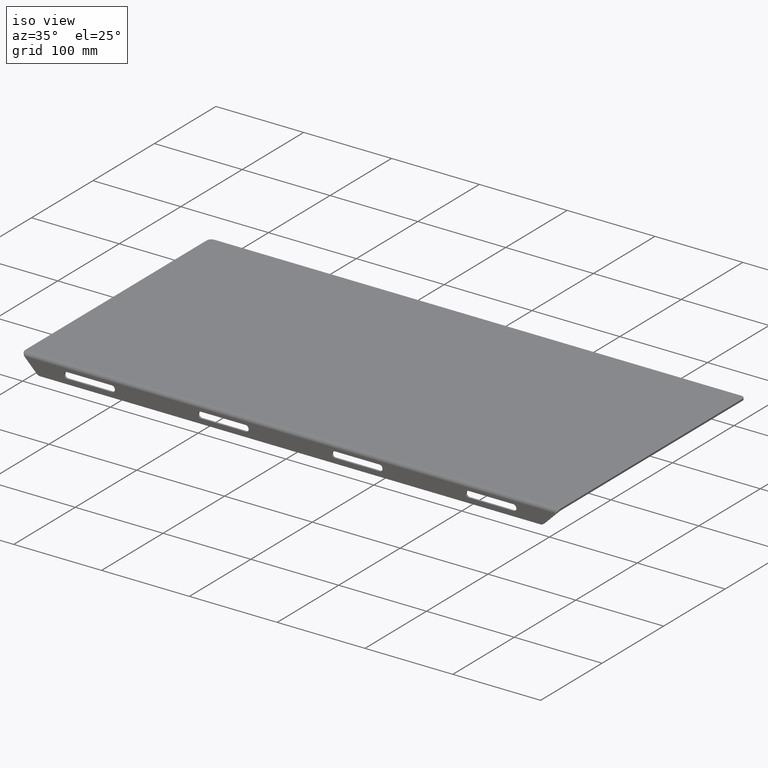
[diagram: clean part render]
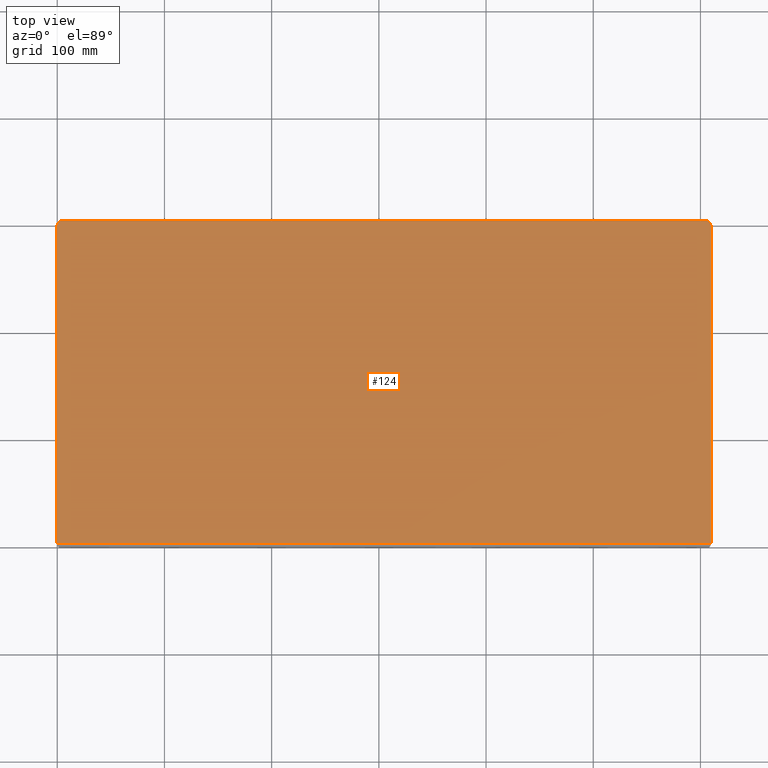
[diagram: tour spotlight — one face highlighted and labeled with its STEP entity id]
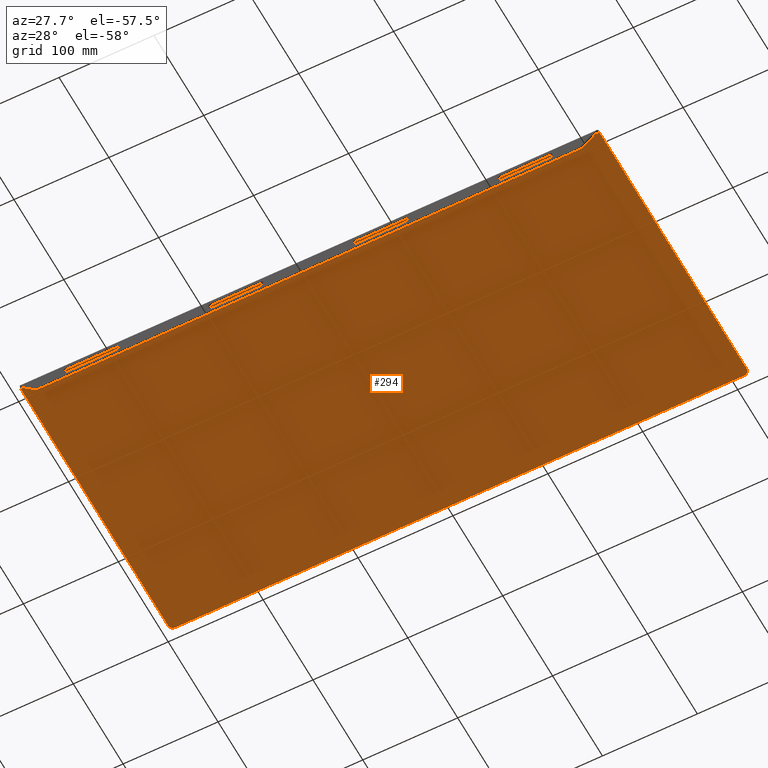
[diagram: tour spotlight — one face highlighted and labeled with its STEP entity id]
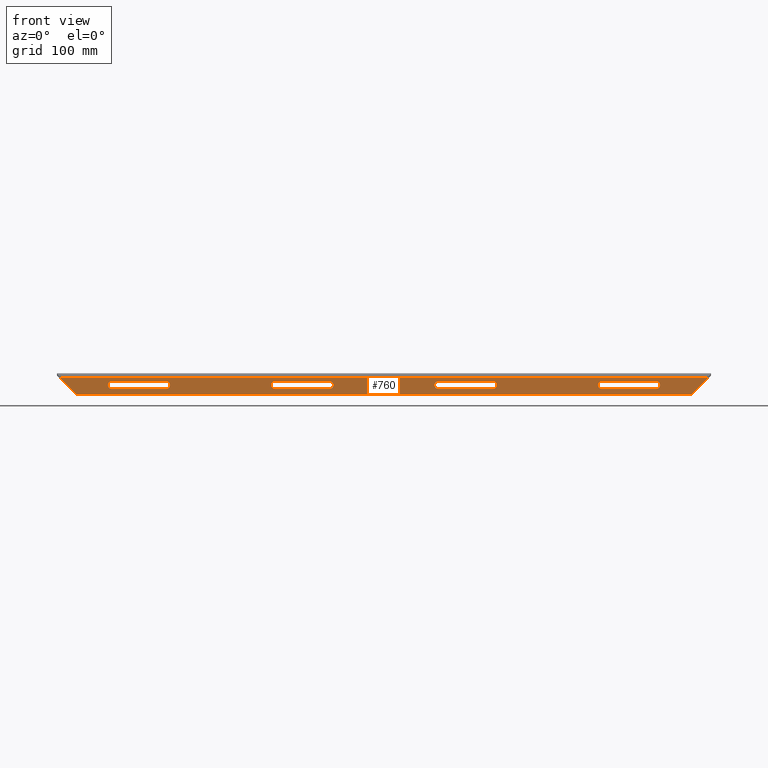
[diagram: tour spotlight — one face highlighted and labeled with its STEP entity id]
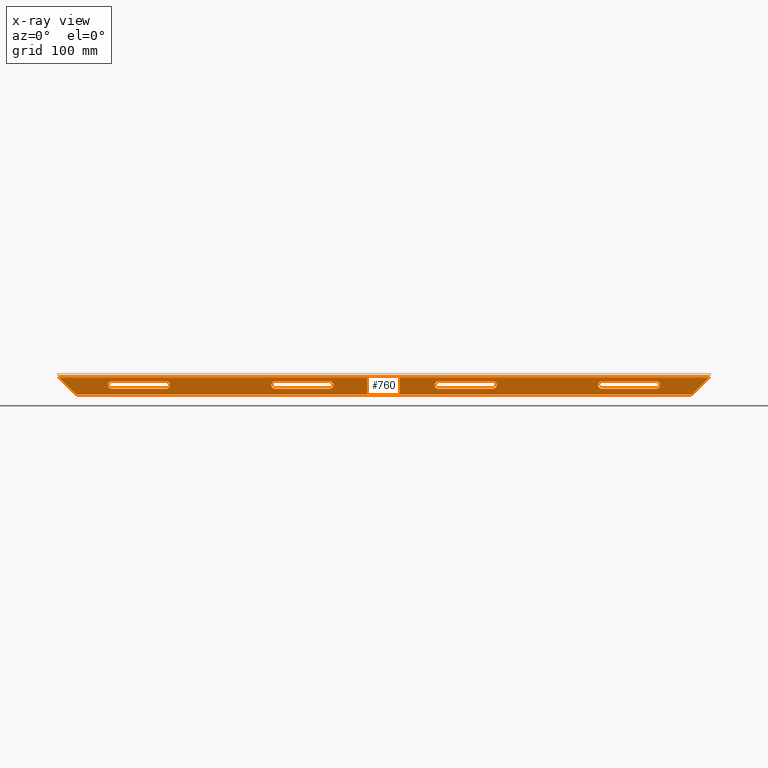
[diagram: x-ray of the same camera — body ghosted, this tour face saturated]
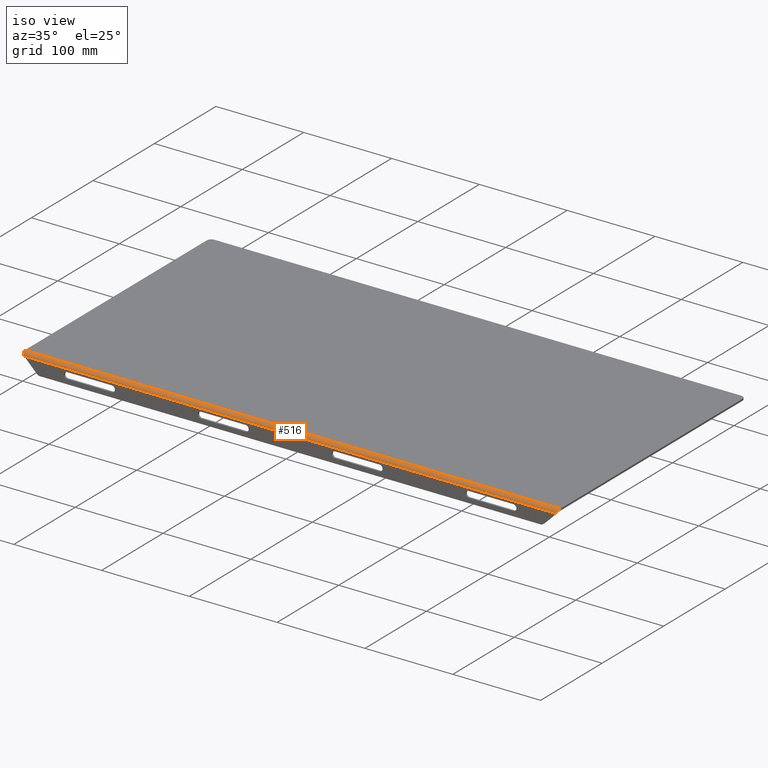
[diagram: tour spotlight — one face highlighted and labeled with its STEP entity id]
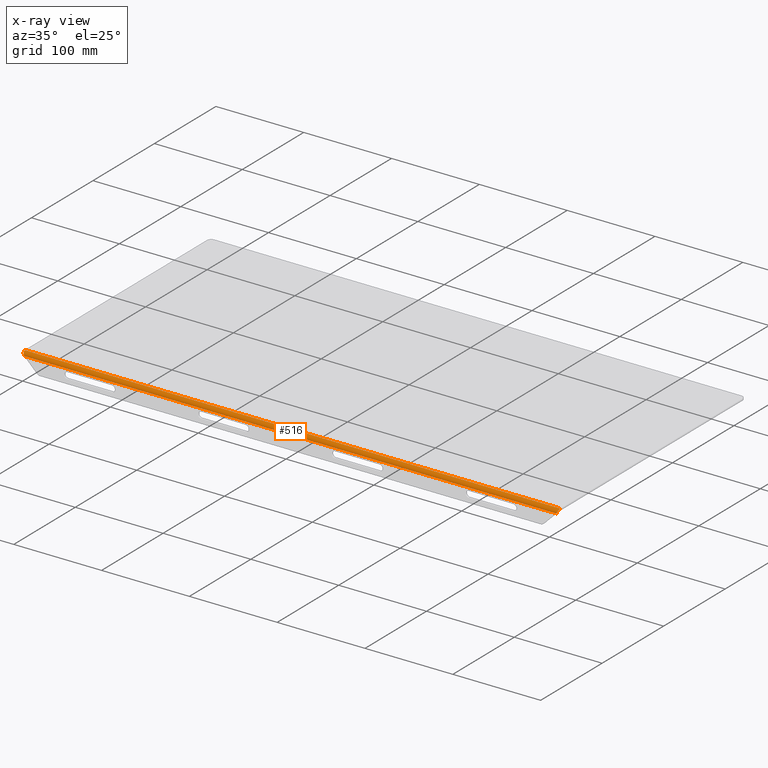
[diagram: x-ray of the same camera — body ghosted, this tour face saturated]
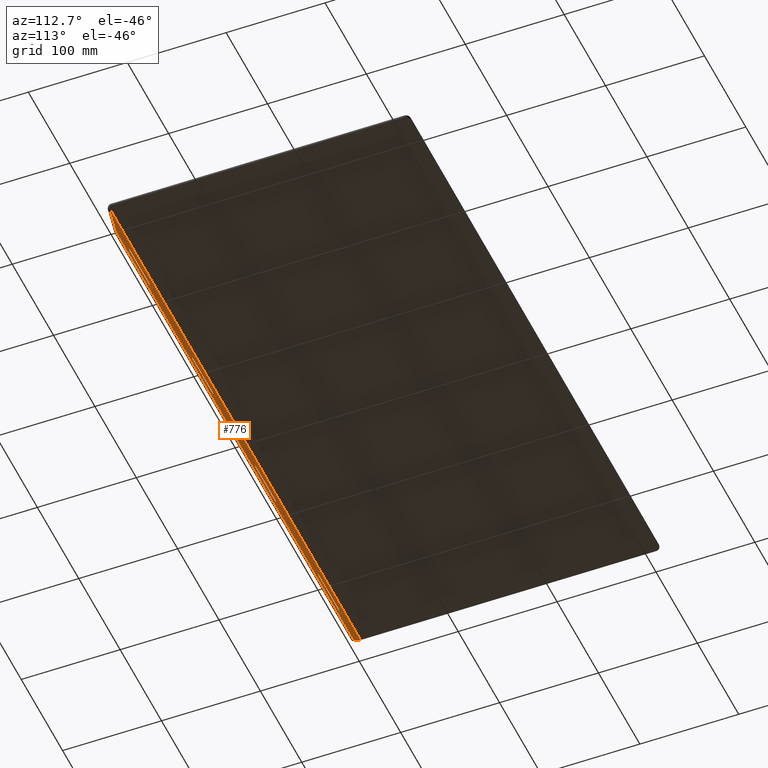
[diagram: tour spotlight — one face highlighted and labeled with its STEP entity id]
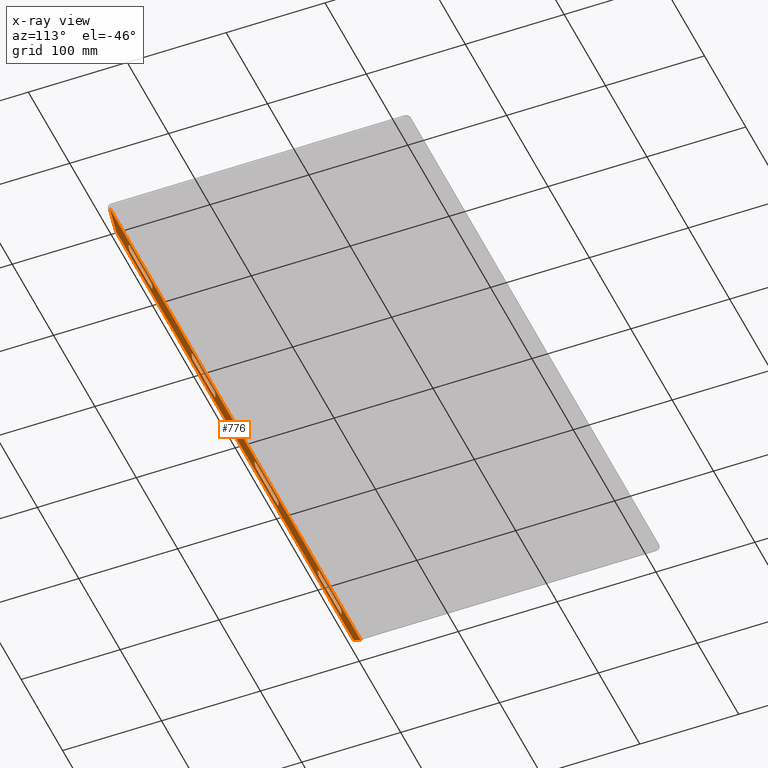
[diagram: x-ray of the same camera — body ghosted, this tour face saturated]
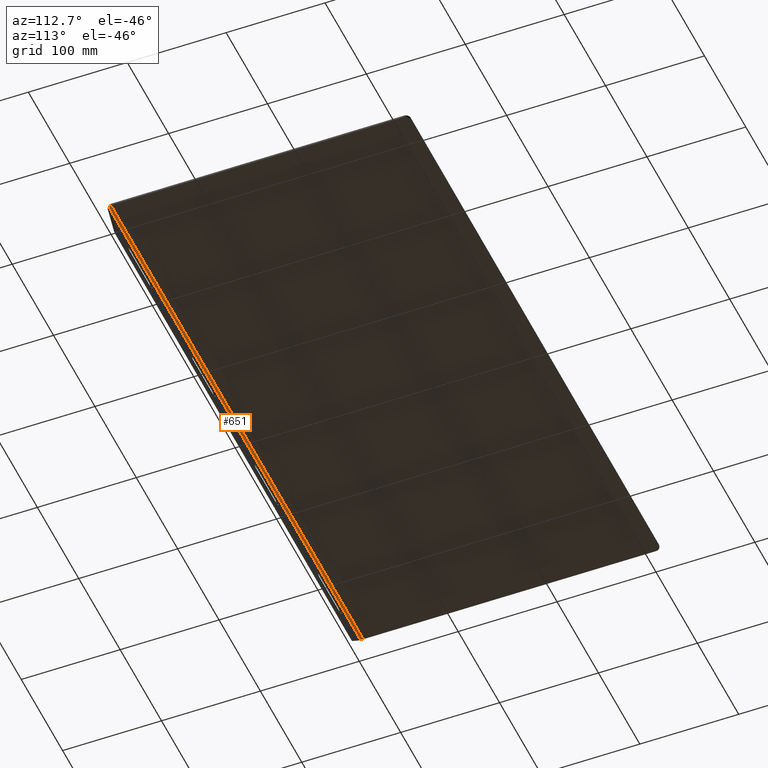
[diagram: tour spotlight — one face highlighted and labeled with its STEP entity id]
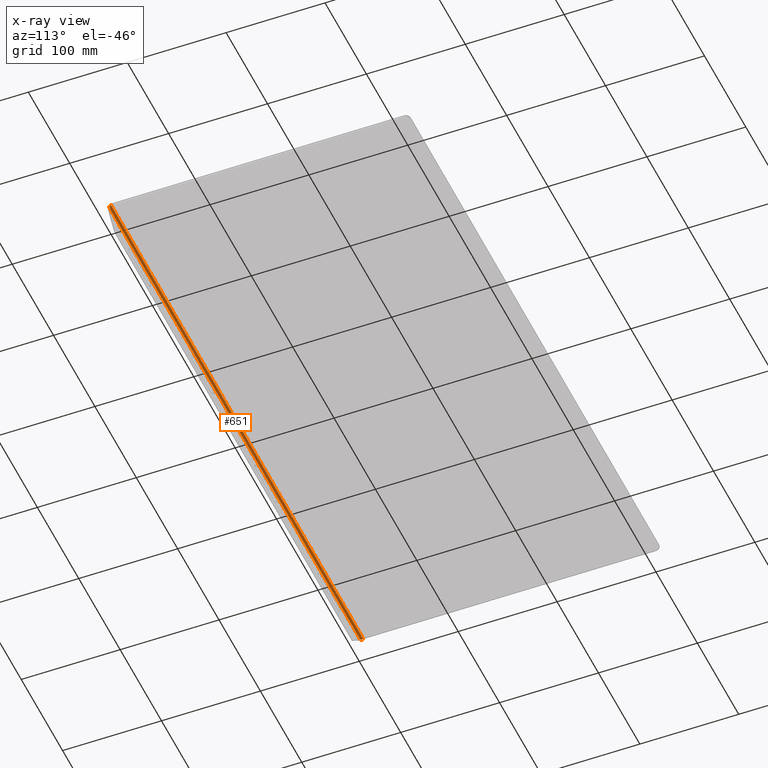
[diagram: x-ray of the same camera — body ghosted, this tour face saturated]
A machine part: a face-by-face anatomy tour. The part has 34 B-rep faces; the first image is the clean iso view, then the 6 largest visible faces are spotlighted one at a time (largest first), each with its STEP entity span.

Face 1 — top view, entity #124. In plain terms, the highlighted planar face has unit normal (0, 0, -1).
Definition (entity closure, byte-faithful):
#9 = LINE ( 'NONE', #101, #615 ) ;
#33 = EDGE_CURVE ( 'NONE', #349, #137, #236, .T. ) ;
#49 = EDGE_CURVE ( 'NONE', #349, #1146, #309, .T. ) ;
#52 = CARTESIAN_POINT ( 'NONE',  ( -0.2000000000000019817, 4.000000000000055955, -1.084202172485504434E-15 ) ) ;
#84 = ORIENTED_EDGE ( 'NONE', *, *, #33, .T. ) ;
#90 = EDGE_CURVE ( 'NONE', #137, #148, #9, .T. ) ;
#101 = CARTESIAN_POINT ( 'NONE',  ( 609.6000000000000227, 305.0000000000000000, 0.000000000000000000 ) ) ;
#117 = DIRECTION ( 'NONE',  ( 0.000000000000000000, -1.000000000000000000, 0.000000000000000000 ) ) ;
#122 = DIRECTION ( 'NONE',  ( 0.000000000000000000, 0.000000000000000000, -1.000000000000000000 ) ) ;
#124 = ADVANCED_FACE ( 'NONE', ( #1177 ), #644, .F. ) ;
#137 = VERTEX_POINT ( 'NONE', #993 ) ;
#148 = VERTEX_POINT ( 'NONE', #975 ) ;
#157 = CARTESIAN_POINT ( 'NONE',  ( 4.800000000000000711, 300.0000000000000000, 0.000000000000000000 ) ) ;
#162 = DIRECTION ( 'NONE',  ( 0.000000000000000000, -1.000000000000000000, 0.000000000000000000 ) ) ;
#168 = LINE ( 'NONE', #252, #174 ) ;
#174 = VECTOR ( 'NONE', #162, 1000.000000000000000 ) ;
#177 = VECTOR ( 'NONE', #603, 1000.000000000000000 ) ;
#236 = CIRCLE ( 'NONE', #377, 5.000000000000004441 ) ;
#252 = CARTESIAN_POINT ( 'NONE',  ( -0.1999999999999779732, 0.000000000000000000, 0.000000000000000000 ) ) ;
#289 = LINE ( 'NONE', #1133, #177 ) ;
#309 = LINE ( 'NONE', #322, #572 ) ;
#322 = CARTESIAN_POINT ( 'NONE',  ( 609.7999999999999545, 0.000000000000000000, 0.000000000000000000 ) ) ;
#349 = VERTEX_POINT ( 'NONE', #906 ) ;
#377 = AXIS2_PLACEMENT_3D ( 'NONE', #1282, #1271, #435 ) ;
#435 = DIRECTION ( 'NONE',  ( -1.000000000000000000, 0.000000000000000000, 0.000000000000000000 ) ) ;
#458 = EDGE_LOOP ( 'NONE', ( #522, #585, #501, #1062, #491, #84 ) ) ;
#491 = ORIENTED_EDGE ( 'NONE', *, *, #49, .F. ) ;
#501 = ORIENTED_EDGE ( 'NONE', *, *, #853, .T. ) ;
#504 = VERTEX_POINT ( 'NONE', #595 ) ;
#522 = ORIENTED_EDGE ( 'NONE', *, *, #90, .T. ) ;
#544 = EDGE_CURVE ( 'NONE', #148, #504, #1153, .T. ) ;
#548 = DIRECTION ( 'NONE',  ( -1.000000000000000000, 0.000000000000000000, -0.000000000000000000 ) ) ;
#572 = VECTOR ( 'NONE', #117, 1000.000000000000000 ) ;
#585 = ORIENTED_EDGE ( 'NONE', *, *, #544, .T. ) ;
#595 = CARTESIAN_POINT ( 'NONE',  ( -0.1999999999999779732, 300.0000000000000000, 0.000000000000000000 ) ) ;
#603 = DIRECTION ( 'NONE',  ( -1.000000000000000000, -0.000000000000000000, -0.000000000000000000 ) ) ;
#615 = VECTOR ( 'NONE', #1163, 1000.000000000000000 ) ;
#644 = PLANE ( 'NONE',  #744 ) ;
#744 = AXIS2_PLACEMENT_3D ( 'NONE', #1068, #122, #548 ) ;
#831 = DIRECTION ( 'NONE',  ( -1.000000000000000000, 0.000000000000000000, 0.000000000000000000 ) ) ;
#853 = EDGE_CURVE ( 'NONE', #504, #1369, #168, .T. ) ;
#859 = AXIS2_PLACEMENT_3D ( 'NONE', #157, #999, #831 ) ;
#906 = CARTESIAN_POINT ( 'NONE',  ( 609.7999999999999545, 300.0000000000000000, 0.000000000000000000 ) ) ;
#975 = CARTESIAN_POINT ( 'NONE',  ( 4.800000000000026468, 305.0000000000000000, 0.000000000000000000 ) ) ;
#993 = CARTESIAN_POINT ( 'NONE',  ( 604.7999999999999545, 305.0000000000000000, 0.000000000000000000 ) ) ;
#999 = DIRECTION ( 'NONE',  ( -0.000000000000000000, -0.000000000000000000, 1.000000000000000000 ) ) ;
#1062 = ORIENTED_EDGE ( 'NONE', *, *, #1173, .F. ) ;
#1068 = CARTESIAN_POINT ( 'NONE',  ( 609.6000000000000227, 0.000000000000000000, 0.000000000000000000 ) ) ;
#1133 = CARTESIAN_POINT ( 'NONE',  ( 609.6000000000000227, 3.999999999999995559, 0.000000000000000000 ) ) ;
#1146 = VERTEX_POINT ( 'NONE', #1252 ) ;
#1153 = CIRCLE ( 'NONE', #859, 5.000000000000000000 ) ;
#1163 = DIRECTION ( 'NONE',  ( -1.000000000000000000, 0.000000000000000000, 0.000000000000000000 ) ) ;
#1173 = EDGE_CURVE ( 'NONE', #1146, #1369, #289, .T. ) ;
#1177 = FACE_OUTER_BOUND ( 'NONE', #458, .T. ) ;
#1252 = CARTESIAN_POINT ( 'NONE',  ( 609.7999999999999545, 4.000000000000140332, 4.336808689941981744E-16 ) ) ;
#1271 = DIRECTION ( 'NONE',  ( -0.000000000000000000, -0.000000000000000000, 1.000000000000000000 ) ) ;
#1282 = CARTESIAN_POINT ( 'NONE',  ( 604.7999999999999545, 300.0000000000000000, 0.000000000000000000 ) ) ;
#1369 = VERTEX_POINT ( 'NONE', #52 ) ;

Face 2 — auxiliary view, entity #294. In plain terms, the highlighted planar face has unit normal (-0, 0, -1).
Definition (entity closure, byte-faithful):
#27 = CARTESIAN_POINT ( 'NONE',  ( 4.800000000000026468, 305.0000000000000000, -1.999999999999999556 ) ) ;
#36 = CARTESIAN_POINT ( 'NONE',  ( 609.7999999999999545, 3.999999999999994227, -2.000000000000000000 ) ) ;
#70 = VERTEX_POINT ( 'NONE', #1048 ) ;
#85 = CARTESIAN_POINT ( 'NONE',  ( 604.7999999999999545, 305.0000000000000000, -1.999999999999999556 ) ) ;
#104 = DIRECTION ( 'NONE',  ( -0.000000000000000000, -0.000000000000000000, -1.000000000000000000 ) ) ;
#125 = CARTESIAN_POINT ( 'NONE',  ( 609.6000000000000227, 3.999999999999997335, -2.000000000000000000 ) ) ;
#132 = LINE ( 'NONE', #237, #379 ) ;
#140 = EDGE_LOOP ( 'NONE', ( #1004, #216, #374, #202, #224, #1165 ) ) ;
#143 = CARTESIAN_POINT ( 'NONE',  ( -0.1999999999999779732, 300.0000000000000000, -2.000000000000000000 ) ) ;
#202 = ORIENTED_EDGE ( 'NONE', *, *, #611, .T. ) ;
#216 = ORIENTED_EDGE ( 'NONE', *, *, #1148, .T. ) ;
#224 = ORIENTED_EDGE ( 'NONE', *, *, #559, .T. ) ;
#237 = CARTESIAN_POINT ( 'NONE',  ( -0.1999999999999779732, 0.000000000000000000, -2.000000000000000000 ) ) ;
#264 = CIRCLE ( 'NONE', #1354, 5.000000000000004441 ) ;
#276 = DIRECTION ( 'NONE',  ( -1.000000000000000000, 0.000000000000000000, 0.000000000000000000 ) ) ;
#280 = DIRECTION ( 'NONE',  ( -1.000000000000000000, 0.000000000000000000, 0.000000000000000000 ) ) ;
#290 = VECTOR ( 'NONE', #729, 1000.000000000000000 ) ;
#294 = ADVANCED_FACE ( 'NONE', ( #1117 ), #1124, .T. ) ;
#313 = VERTEX_POINT ( 'NONE', #85 ) ;
#329 = AXIS2_PLACEMENT_3D ( 'NONE', #589, #712, #280 ) ;
#331 = AXIS2_PLACEMENT_3D ( 'NONE', #1125, #828, #1009 ) ;
#374 = ORIENTED_EDGE ( 'NONE', *, *, #905, .F. ) ;
#379 = VECTOR ( 'NONE', #663, 1000.000000000000000 ) ;
#413 = VERTEX_POINT ( 'NONE', #143 ) ;
#418 = DIRECTION ( 'NONE',  ( -1.000000000000000000, 0.000000000000000000, 0.000000000000000000 ) ) ;
#427 = CARTESIAN_POINT ( 'NONE',  ( 604.7999999999999545, 300.0000000000000000, -2.000000000000000000 ) ) ;
#431 = VERTEX_POINT ( 'NONE', #27 ) ;
#498 = EDGE_CURVE ( 'NONE', #1023, #70, #1072, .T. ) ;
#502 = EDGE_CURVE ( 'NONE', #413, #70, #132, .T. ) ;
#527 = VERTEX_POINT ( 'NONE', #630 ) ;
#559 = EDGE_CURVE ( 'NONE', #527, #1023, #580, .T. ) ;
#580 = LINE ( 'NONE', #911, #290 ) ;
#589 = CARTESIAN_POINT ( 'NONE',  ( 609.6000000000000227, 0.000000000000000000, -2.000000000000000000 ) ) ;
#611 = EDGE_CURVE ( 'NONE', #313, #527, #264, .T. ) ;
#630 = CARTESIAN_POINT ( 'NONE',  ( 609.7999999999999545, 300.0000000000000000, -2.000000000000000000 ) ) ;
#663 = DIRECTION ( 'NONE',  ( 0.000000000000000000, -1.000000000000000000, 0.000000000000000000 ) ) ;
#704 = VECTOR ( 'NONE', #276, 1000.000000000000000 ) ;
#712 = DIRECTION ( 'NONE',  ( -0.000000000000000000, 0.000000000000000000, -1.000000000000000000 ) ) ;
#729 = DIRECTION ( 'NONE',  ( 0.000000000000000000, -1.000000000000000000, 0.000000000000000000 ) ) ;
#781 = LINE ( 'NONE', #1221, #704 ) ;
#788 = VECTOR ( 'NONE', #1077, 1000.000000000000000 ) ;
#828 = DIRECTION ( 'NONE',  ( -0.000000000000000000, -0.000000000000000000, -1.000000000000000000 ) ) ;
#905 = EDGE_CURVE ( 'NONE', #313, #431, #781, .T. ) ;
#911 = CARTESIAN_POINT ( 'NONE',  ( 609.7999999999999545, 0.000000000000000000, -2.000000000000000000 ) ) ;
#925 = CIRCLE ( 'NONE', #331, 5.000000000000000000 ) ;
#1004 = ORIENTED_EDGE ( 'NONE', *, *, #502, .F. ) ;
#1009 = DIRECTION ( 'NONE',  ( -1.000000000000000000, 0.000000000000000000, 0.000000000000000000 ) ) ;
#1023 = VERTEX_POINT ( 'NONE', #36 ) ;
#1048 = CARTESIAN_POINT ( 'NONE',  ( -0.1999999999999954869, 4.000000000179122495, -2.000000000000000888 ) ) ;
#1072 = LINE ( 'NONE', #125, #788 ) ;
#1077 = DIRECTION ( 'NONE',  ( -1.000000000000000000, -0.000000000000000000, -0.000000000000000000 ) ) ;
#1117 = FACE_OUTER_BOUND ( 'NONE', #140, .T. ) ;
#1124 = PLANE ( 'NONE',  #329 ) ;
#1125 = CARTESIAN_POINT ( 'NONE',  ( 4.800000000000000711, 300.0000000000000000, -2.000000000000000000 ) ) ;
#1148 = EDGE_CURVE ( 'NONE', #413, #431, #925, .T. ) ;
#1165 = ORIENTED_EDGE ( 'NONE', *, *, #498, .T. ) ;
#1221 = CARTESIAN_POINT ( 'NONE',  ( 609.6000000000000227, 305.0000000000000000, -1.999999999999999556 ) ) ;
#1354 = AXIS2_PLACEMENT_3D ( 'NONE', #427, #104, #418 ) ;

Face 3 — front view, entity #760. An x-ray twin of the same camera follows (body ghosted, this face saturated) — the face is partly hidden behind the body. In plain terms, the highlighted planar face has unit normal (-0, 1, 0).
Definition (entity closure, byte-faithful):
#10 = LINE ( 'NONE', #430, #1194 ) ;
#12 = DIRECTION ( 'NONE',  ( 0.000000000000000000, -0.000000000000000000, 1.000000000000000000 ) ) ;
#18 = FACE_BOUND ( 'NONE', #451, .T. ) ;
#24 = FACE_BOUND ( 'NONE', #210, .T. ) ;
#30 = CIRCLE ( 'NONE', #1108, 3.499999999999999556 ) ;
#41 = CARTESIAN_POINT ( 'NONE',  ( 610.7414213562373106, 0.000000000000000000, -1.141421356237317442 ) ) ;
#47 = VECTOR ( 'NONE', #266, 1000.000000000000000 ) ;
#50 = CARTESIAN_POINT ( 'NONE',  ( 355.6000000000001364, 0.000000000000000000, -14.50000000000000178 ) ) ;
#53 = DIRECTION ( 'NONE',  ( 0.000000000000000000, -1.000000000000000000, -0.000000000000000000 ) ) ;
#55 = CARTESIAN_POINT ( 'NONE',  ( 558.8000000000000682, 0.000000000000000000, -14.50000000000000000 ) ) ;
#65 = VECTOR ( 'NONE', #284, 1000.000000000000000 ) ;
#75 = ORIENTED_EDGE ( 'NONE', *, *, #569, .F. ) ;
#77 = ORIENTED_EDGE ( 'NONE', *, *, #246, .F. ) ;
#80 = DIRECTION ( 'NONE',  ( 0.000000000000000000, 0.000000000000000000, 1.000000000000000000 ) ) ;
#81 = VERTEX_POINT ( 'NONE', #745 ) ;
#82 = LINE ( 'NONE', #715, #617 ) ;
#86 = CARTESIAN_POINT ( 'NONE',  ( 508.0000000000001137, 0.000000000000000000, -7.500000000000001776 ) ) ;
#87 = EDGE_LOOP ( 'NONE', ( #982, #245, #888, #723 ) ) ;
#89 = CIRCLE ( 'NONE', #1193, 3.499999999999999556 ) ;
#114 = CIRCLE ( 'NONE', #406, 4.999999999999999112 ) ;
#118 = VERTEX_POINT ( 'NONE', #843 ) ;
#123 = VERTEX_POINT ( 'NONE', #1170 ) ;
#138 = DIRECTION ( 'NONE',  ( -0.000000000000000000, 1.000000000000000000, 0.000000000000000000 ) ) ;
#141 = DIRECTION ( 'NONE',  ( -1.000000000000000000, -0.000000000000000000, -0.000000000000000000 ) ) ;
#146 = VERTEX_POINT ( 'NONE', #159 ) ;
#153 = CIRCLE ( 'NONE', #1017, 3.500000000000001332 ) ;
#159 = CARTESIAN_POINT ( 'NONE',  ( 607.8236067977495622, 3.547246928158921675E-14, -4.000000000001104894 ) ) ;
#164 = LINE ( 'NONE', #1342, #466 ) ;
#175 = VERTEX_POINT ( 'NONE', #981 ) ;
#180 = EDGE_CURVE ( 'NONE', #146, #123, #223, .T. ) ;
#182 = DIRECTION ( 'NONE',  ( 0.000000000000000000, -1.000000000000000000, -0.000000000000000000 ) ) ;
#197 = ORIENTED_EDGE ( 'NONE', *, *, #398, .F. ) ;
#210 = EDGE_LOOP ( 'NONE', ( #987, #1041, #75, #77 ) ) ;
#213 = DIRECTION ( 'NONE',  ( 1.000000000000000000, 0.000000000000000000, 0.000000000000000000 ) ) ;
#218 = CIRCLE ( 'NONE', #1175, 3.499999999999999556 ) ;
#221 = EDGE_CURVE ( 'NONE', #81, #437, #772, .T. ) ;
#223 = B_SPLINE_CURVE_WITH_KNOTS ( 'NONE', 3,
 ( #468, #241, #783, #778 ),
 .UNSPECIFIED., .F., .F.,
 ( 4, 4 ),
 ( 0.000000000000000000, 0.0001324513459699171939 ),
 .UNSPECIFIED. ) ;
#225 = CARTESIAN_POINT ( 'NONE',  ( 1.835625996862211284, -5.548595200107701159E-15, -4.118468709336685407 ) ) ;
#232 = DIRECTION ( 'NONE',  ( 2.379049338482478526E-14, 0.000000000000000000, 1.000000000000000000 ) ) ;
#234 = ORIENTED_EDGE ( 'NONE', *, *, #1113, .T. ) ;
#239 = CARTESIAN_POINT ( 'NONE',  ( 203.1999999999999886, 0.000000000000000000, -14.50000000000000000 ) ) ;
#241 = CARTESIAN_POINT ( 'NONE',  ( 607.8038660665890802, 3.547246928158921675E-14, -4.039491336390615750 ) ) ;
#245 = ORIENTED_EDGE ( 'NONE', *, *, #1259, .F. ) ;
#246 = EDGE_CURVE ( 'NONE', #399, #618, #1127, .T. ) ;
#248 = LINE ( 'NONE', #239, #1288 ) ;
#250 = LINE ( 'NONE', #380, #47 ) ;
#259 = VERTEX_POINT ( 'NONE', #295 ) ;
#266 = DIRECTION ( 'NONE',  ( -1.000000000000000000, -0.000000000000000000, -0.000000000000000000 ) ) ;
#268 = VERTEX_POINT ( 'NONE', #602 ) ;
#270 = CARTESIAN_POINT ( 'NONE',  ( 101.5999999999999091, 0.000000000000000000, -7.500000000000001776 ) ) ;
#273 = DIRECTION ( 'NONE',  ( 0.000000000000000000, -1.000000000000000000, -0.000000000000000000 ) ) ;
#284 = DIRECTION ( 'NONE',  ( -1.000000000000000000, 0.000000000000000000, 0.000000000000000000 ) ) ;
#285 = VERTEX_POINT ( 'NONE', #1246 ) ;
#286 = EDGE_CURVE ( 'NONE', #1136, #411, #901, .T. ) ;
#288 = AXIS2_PLACEMENT_3D ( 'NONE', #758, #53, #232 ) ;
#295 = CARTESIAN_POINT ( 'NONE',  ( 254.0000000000000000, 0.000000000000000000, -7.500000000000010658 ) ) ;
#304 = DIRECTION ( 'NONE',  ( 0.000000000000000000, -1.000000000000000000, -0.000000000000000000 ) ) ;
#314 = CIRCLE ( 'NONE', #511, 3.500000000000000444 ) ;
#342 = CARTESIAN_POINT ( 'NONE',  ( 19.78822509939104179, 0.000000000000000000, -15.00000000000001421 ) ) ;
#345 = CARTESIAN_POINT ( 'NONE',  ( 1.776393202249981762, 0.000000000000000000, -4.000000000000000000 ) ) ;
#360 = DIRECTION ( 'NONE',  ( 0.7071067811865501263, 0.000000000000000000, -0.7071067811865450192 ) ) ;
#362 = DIRECTION ( 'NONE',  ( -1.000000000000000000, -0.000000000000000000, 1.878145495644182812E-16 ) ) ;
#363 = CARTESIAN_POINT ( 'NONE',  ( 50.79999999999999716, 0.000000000000000000, -11.00000000000000178 ) ) ;
#365 = CARTESIAN_POINT ( 'NONE',  ( 16.25269119345828983, 0.000000000000000000, -18.53553390593276617 ) ) ;
#380 = CARTESIAN_POINT ( 'NONE',  ( 609.6000000000000227, 0.000000000000000000, -4.000000000000000000 ) ) ;
#389 = CARTESIAN_POINT ( 'NONE',  ( 589.8117749006089525, 0.000000000000000000, -20.00000000000000000 ) ) ;
#390 = CARTESIAN_POINT ( 'NONE',  ( 508.0000000000001137, 0.000000000000000000, -7.500000000000001776 ) ) ;
#392 = DIRECTION ( 'NONE',  ( -1.000000000000000000, 0.000000000000000000, 0.000000000000000000 ) ) ;
#394 = CARTESIAN_POINT ( 'NONE',  ( 203.1999999999999886, 0.000000000000000000, -11.00000000000000178 ) ) ;
#398 = EDGE_CURVE ( 'NONE', #285, #259, #89, .T. ) ;
#399 = VERTEX_POINT ( 'NONE', #1087 ) ;
#406 = AXIS2_PLACEMENT_3D ( 'NONE', #918, #1032, #814 ) ;
#411 = VERTEX_POINT ( 'NONE', #1095 ) ;
#430 = CARTESIAN_POINT ( 'NONE',  ( 203.1999999999999886, 0.000000000000000000, -7.500000000000001776 ) ) ;
#432 = EDGE_CURVE ( 'NONE', #118, #899, #991, .T. ) ;
#437 = VERTEX_POINT ( 'NONE', #1319 ) ;
#438 = PLANE ( 'NONE',  #947 ) ;
#451 = EDGE_LOOP ( 'NONE', ( #806, #1143, #1339, #197 ) ) ;
#460 = EDGE_LOOP ( 'NONE', ( #952, #234, #983, #1295, #1071, #747, #512, #878 ) ) ;
#465 = VECTOR ( 'NONE', #362, 1000.000000000000000 ) ;
#466 = VECTOR ( 'NONE', #392, 1000.000000000000000 ) ;
#468 = CARTESIAN_POINT ( 'NONE',  ( 607.8236067977495622, 3.547246928158921675E-14, -4.000000000001104894 ) ) ;
#479 = EDGE_CURVE ( 'NONE', #268, #118, #1355, .T. ) ;
#487 = CIRCLE ( 'NONE', #573, 3.499999999999999556 ) ;
#492 = CARTESIAN_POINT ( 'NONE',  ( 50.79999999999999716, 0.000000000000000000, -14.50000000000000000 ) ) ;
#511 = AXIS2_PLACEMENT_3D ( 'NONE', #523, #304, #1335 ) ;
#512 = ORIENTED_EDGE ( 'NONE', *, *, #432, .T. ) ;
#523 = CARTESIAN_POINT ( 'NONE',  ( 406.4000000000000909, 0.000000000000000000, -11.00000000000001066 ) ) ;
#538 = ORIENTED_EDGE ( 'NONE', *, *, #221, .F. ) ;
#552 = CARTESIAN_POINT ( 'NONE',  ( 508.0000000000001137, 0.000000000000000000, -14.50000000000000000 ) ) ;
#569 = EDGE_CURVE ( 'NONE', #618, #1326, #164, .T. ) ;
#573 = AXIS2_PLACEMENT_3D ( 'NONE', #1003, #996, #1114 ) ;
#578 = EDGE_CURVE ( 'NONE', #175, #81, #314, .T. ) ;
#586 = CARTESIAN_POINT ( 'NONE',  ( 19.78822509939126562, 0.000000000000000000, -20.00000000000000000 ) ) ;
#590 = CARTESIAN_POINT ( 'NONE',  ( 203.1999999999999886, 0.000000000000000000, -7.500000000000001776 ) ) ;
#596 = EDGE_CURVE ( 'NONE', #928, #399, #1006, .T. ) ;
#597 = AXIS2_PLACEMENT_3D ( 'NONE', #342, #759, #844 ) ;
#602 = CARTESIAN_POINT ( 'NONE',  ( 1.776393202249981762, 0.000000000000000000, -4.000000000000000000 ) ) ;
#617 = VECTOR ( 'NONE', #1254, 1000.000000000000000 ) ;
#618 = VERTEX_POINT ( 'NONE', #270 ) ;
#620 = VECTOR ( 'NONE', #213, 1000.000000000000000 ) ;
#643 = CARTESIAN_POINT ( 'NONE',  ( 508.0000000000001137, 0.000000000000000000, -14.50000000000000000 ) ) ;
#652 = FACE_OUTER_BOUND ( 'NONE', #460, .T. ) ;
#659 = VECTOR ( 'NONE', #360, 1000.000000000000114 ) ;
#661 = VECTOR ( 'NONE', #141, 1000.000000000000000 ) ;
#671 = DIRECTION ( 'NONE',  ( 0.7071067811865501263, -0.000000000000000000, 0.7071067811865450192 ) ) ;
#673 = CARTESIAN_POINT ( 'NONE',  ( 593.3473088065417187, 0.000000000000000000, -18.53553390593277683 ) ) ;
#674 = ORIENTED_EDGE ( 'NONE', *, *, #1118, .F. ) ;
#698 = CARTESIAN_POINT ( 'NONE',  ( 355.6000000000001364, 0.000000000000000000, -11.00000000000000178 ) ) ;
#715 = CARTESIAN_POINT ( 'NONE',  ( 355.6000000000001364, 0.000000000000000000, -14.50000000000000178 ) ) ;
#717 = EDGE_LOOP ( 'NONE', ( #1200, #674, #538, #1363 ) ) ;
#723 = ORIENTED_EDGE ( 'NONE', *, *, #819, .F. ) ;
#726 = CARTESIAN_POINT ( 'NONE',  ( 558.8000000000000682, 0.000000000000000000, -7.500000000000001776 ) ) ;
#745 = CARTESIAN_POINT ( 'NONE',  ( 406.4000000000000909, 0.000000000000000000, -7.500000000000009770 ) ) ;
#746 = CIRCLE ( 'NONE', #597, 5.000000000000000888 ) ;
#747 = ORIENTED_EDGE ( 'NONE', *, *, #479, .T. ) ;
#758 = CARTESIAN_POINT ( 'NONE',  ( 101.5999999999999943, 0.000000000000000000, -11.00000000000000178 ) ) ;
#759 = DIRECTION ( 'NONE',  ( 0.000000000000000000, -1.000000000000000000, -0.000000000000000000 ) ) ;
#760 = ADVANCED_FACE ( 'NONE', ( #958, #18, #1166, #24, #652 ), #438, .F. ) ;
#762 = CARTESIAN_POINT ( 'NONE',  ( 1.796133933410621886, 0.000000000000000000, -4.039491336389790632 ) ) ;
#772 = LINE ( 'NONE', #1079, #465 ) ;
#777 = CARTESIAN_POINT ( 'NONE',  ( 254.0000000000000000, 0.000000000000000000, -11.00000000000001066 ) ) ;
#778 = CARTESIAN_POINT ( 'NONE',  ( 607.7643740031376183, 0.000000000000000000, -4.118468709336967848 ) ) ;
#783 = CARTESIAN_POINT ( 'NONE',  ( 607.7841148720376623, 7.236985973869698024E-14, -4.078977441800189396 ) ) ;
#795 = LINE ( 'NONE', #988, #661 ) ;
#806 = ORIENTED_EDGE ( 'NONE', *, *, #1311, .F. ) ;
#814 = DIRECTION ( 'NONE',  ( -2.220446049250313396E-14, 0.000000000000000000, 1.000000000000000000 ) ) ;
#815 = VERTEX_POINT ( 'NONE', #673 ) ;
#819 = EDGE_CURVE ( 'NONE', #824, #1212, #487, .T. ) ;
#824 = VERTEX_POINT ( 'NONE', #55 ) ;
#843 = CARTESIAN_POINT ( 'NONE',  ( 1.835625996862211284, -5.548595200107701159E-15, -4.118468709336685407 ) ) ;
#844 = DIRECTION ( 'NONE',  ( 2.081668171172168119E-15, 0.000000000000000000, 1.000000000000000000 ) ) ;
#856 = AXIS2_PLACEMENT_3D ( 'NONE', #394, #273, #1025 ) ;
#862 = CARTESIAN_POINT ( 'NONE',  ( 609.6000000000000227, 0.000000000000000000, 0.000000000000000000 ) ) ;
#865 = DIRECTION ( 'NONE',  ( 1.000000000000000000, 0.000000000000000000, -1.707404996040164512E-16 ) ) ;
#868 = VERTEX_POINT ( 'NONE', #586 ) ;
#878 = ORIENTED_EDGE ( 'NONE', *, *, #980, .T. ) ;
#879 = EDGE_CURVE ( 'NONE', #1075, #868, #795, .T. ) ;
#888 = ORIENTED_EDGE ( 'NONE', *, *, #921, .F. ) ;
#891 = CARTESIAN_POINT ( 'NONE',  ( 50.79999999999999716, 0.000000000000000000, -7.500000000000001776 ) ) ;
#893 = VERTEX_POINT ( 'NONE', #50 ) ;
#899 = VERTEX_POINT ( 'NONE', #365 ) ;
#901 = CIRCLE ( 'NONE', #856, 3.499999999999999556 ) ;
#918 = CARTESIAN_POINT ( 'NONE',  ( 589.8117749006089525, 0.000000000000000000, -15.00000000000000178 ) ) ;
#921 = EDGE_CURVE ( 'NONE', #1212, #1094, #1011, .T. ) ;
#924 = VECTOR ( 'NONE', #1115, 1000.000000000000000 ) ;
#928 = VERTEX_POINT ( 'NONE', #492 ) ;
#938 = EDGE_CURVE ( 'NONE', #893, #175, #82, .T. ) ;
#947 = AXIS2_PLACEMENT_3D ( 'NONE', #862, #138, #12 ) ;
#952 = ORIENTED_EDGE ( 'NONE', *, *, #879, .F. ) ;
#958 = FACE_BOUND ( 'NONE', #717, .T. ) ;
#965 = EDGE_CURVE ( 'NONE', #259, #1136, #10, .T. ) ;
#966 = DIRECTION ( 'NONE',  ( 0.000000000000000000, -1.000000000000000000, -0.000000000000000000 ) ) ;
#967 = DIRECTION ( 'NONE',  ( 0.000000000000000000, -1.000000000000000000, -0.000000000000000000 ) ) ;
#970 = VECTOR ( 'NONE', #671, 1000.000000000000114 ) ;
#980 = EDGE_CURVE ( 'NONE', #899, #868, #746, .T. ) ;
#981 = CARTESIAN_POINT ( 'NONE',  ( 406.4000000000000909, 0.000000000000000000, -14.50000000000001066 ) ) ;
#982 = ORIENTED_EDGE ( 'NONE', *, *, #1225, .F. ) ;
#983 = ORIENTED_EDGE ( 'NONE', *, *, #1061, .T. ) ;
#986 = DIRECTION ( 'NONE',  ( 0.000000000000000000, 0.000000000000000000, 1.000000000000000000 ) ) ;
#987 = ORIENTED_EDGE ( 'NONE', *, *, #596, .F. ) ;
#988 = CARTESIAN_POINT ( 'NONE',  ( 609.6000000000000227, 0.000000000000000000, -20.00000000000000000 ) ) ;
#991 = LINE ( 'NONE', #1292, #659 ) ;
#994 = DIRECTION ( 'NONE',  ( 0.000000000000000000, -1.000000000000000000, -0.000000000000000000 ) ) ;
#996 = DIRECTION ( 'NONE',  ( 0.000000000000000000, -1.000000000000000000, -0.000000000000000000 ) ) ;
#1003 = CARTESIAN_POINT ( 'NONE',  ( 558.8000000000000682, 0.000000000000000000, -11.00000000000000178 ) ) ;
#1006 = LINE ( 'NONE', #1161, #924 ) ;
#1011 = LINE ( 'NONE', #390, #65 ) ;
#1012 = EDGE_CURVE ( 'NONE', #146, #268, #250, .T. ) ;
#1017 = AXIS2_PLACEMENT_3D ( 'NONE', #698, #182, #80 ) ;
#1019 = EDGE_CURVE ( 'NONE', #1326, #928, #218, .T. ) ;
#1025 = DIRECTION ( 'NONE',  ( 0.000000000000000000, 0.000000000000000000, 1.000000000000000000 ) ) ;
#1032 = DIRECTION ( 'NONE',  ( 0.000000000000000000, -1.000000000000000000, -0.000000000000000000 ) ) ;
#1041 = ORIENTED_EDGE ( 'NONE', *, *, #1019, .F. ) ;
#1047 = DIRECTION ( 'NONE',  ( 0.000000000000000000, 0.000000000000000000, 1.000000000000000000 ) ) ;
#1061 = EDGE_CURVE ( 'NONE', #815, #123, #1090, .T. ) ;
#1067 = LINE ( 'NONE', #552, #620 ) ;
#1071 = ORIENTED_EDGE ( 'NONE', *, *, #1012, .T. ) ;
#1075 = VERTEX_POINT ( 'NONE', #389 ) ;
#1079 = CARTESIAN_POINT ( 'NONE',  ( 355.6000000000001364, 0.000000000000000000, -7.500000000000000888 ) ) ;
#1087 = CARTESIAN_POINT ( 'NONE',  ( 101.5999999999999943, 0.000000000000000000, -14.50000000000000000 ) ) ;
#1090 = LINE ( 'NONE', #41, #970 ) ;
#1094 = VERTEX_POINT ( 'NONE', #86 ) ;
#1095 = CARTESIAN_POINT ( 'NONE',  ( 203.1999999999999886, 0.000000000000000000, -14.50000000000000000 ) ) ;
#1108 = AXIS2_PLACEMENT_3D ( 'NONE', #1281, #967, #1047 ) ;
#1113 = EDGE_CURVE ( 'NONE', #1075, #815, #114, .T. ) ;
#1114 = DIRECTION ( 'NONE',  ( 0.000000000000000000, 0.000000000000000000, 1.000000000000000000 ) ) ;
#1115 = DIRECTION ( 'NONE',  ( 1.000000000000000000, 0.000000000000000000, 0.000000000000000000 ) ) ;
#1118 = EDGE_CURVE ( 'NONE', #437, #893, #153, .T. ) ;
#1127 = CIRCLE ( 'NONE', #288, 3.499999999999999556 ) ;
#1136 = VERTEX_POINT ( 'NONE', #590 ) ;
#1143 = ORIENTED_EDGE ( 'NONE', *, *, #286, .F. ) ;
#1161 = CARTESIAN_POINT ( 'NONE',  ( 50.79999999999999716, 0.000000000000000000, -14.50000000000000000 ) ) ;
#1166 = FACE_BOUND ( 'NONE', #87, .T. ) ;
#1170 = CARTESIAN_POINT ( 'NONE',  ( 607.7643740031376183, 0.000000000000000000, -4.118468709336967848 ) ) ;
#1175 = AXIS2_PLACEMENT_3D ( 'NONE', #363, #994, #986 ) ;
#1189 = DIRECTION ( 'NONE',  ( -1.000000000000000000, -0.000000000000000000, 1.878145495644180839E-16 ) ) ;
#1192 = CARTESIAN_POINT ( 'NONE',  ( 1.815885127962179935, -7.835054762102278136E-18, -4.078977441799669812 ) ) ;
#1193 = AXIS2_PLACEMENT_3D ( 'NONE', #777, #966, #1208 ) ;
#1194 = VECTOR ( 'NONE', #1189, 1000.000000000000000 ) ;
#1200 = ORIENTED_EDGE ( 'NONE', *, *, #938, .F. ) ;
#1208 = DIRECTION ( 'NONE',  ( 0.000000000000000000, 0.000000000000000000, 1.000000000000000000 ) ) ;
#1212 = VERTEX_POINT ( 'NONE', #726 ) ;
#1225 = EDGE_CURVE ( 'NONE', #1284, #824, #1067, .T. ) ;
#1246 = CARTESIAN_POINT ( 'NONE',  ( 254.0000000000000000, 0.000000000000000000, -14.50000000000000888 ) ) ;
#1254 = DIRECTION ( 'NONE',  ( 1.000000000000000000, 0.000000000000000000, -1.707404996040166237E-16 ) ) ;
#1259 = EDGE_CURVE ( 'NONE', #1094, #1284, #30, .T. ) ;
#1281 = CARTESIAN_POINT ( 'NONE',  ( 508.0000000000001137, 0.000000000000000000, -11.00000000000000178 ) ) ;
#1284 = VERTEX_POINT ( 'NONE', #643 ) ;
#1288 = VECTOR ( 'NONE', #865, 1000.000000000000000 ) ;
#1292 = CARTESIAN_POINT ( 'NONE',  ( 303.6585786437649404, 0.000000000000000000, -305.9414213562372993 ) ) ;
#1295 = ORIENTED_EDGE ( 'NONE', *, *, #180, .F. ) ;
#1311 = EDGE_CURVE ( 'NONE', #411, #285, #248, .T. ) ;
#1319 = CARTESIAN_POINT ( 'NONE',  ( 355.6000000000001364, 0.000000000000000000, -7.500000000000000888 ) ) ;
#1326 = VERTEX_POINT ( 'NONE', #891 ) ;
#1335 = DIRECTION ( 'NONE',  ( 0.000000000000000000, 0.000000000000000000, 1.000000000000000000 ) ) ;
#1339 = ORIENTED_EDGE ( 'NONE', *, *, #965, .F. ) ;
#1342 = CARTESIAN_POINT ( 'NONE',  ( 50.79999999999999716, 0.000000000000000000, -7.500000000000001776 ) ) ;
#1355 = B_SPLINE_CURVE_WITH_KNOTS ( 'NONE', 3,
 ( #345, #762, #1192, #225 ),
 .UNSPECIFIED., .F., .F.,
 ( 4, 4 ),
 ( 0.000000000000000000, 0.0001324513459707920638 ),
 .UNSPECIFIED. ) ;
#1363 = ORIENTED_EDGE ( 'NONE', *, *, #578, .F. ) ;

Face 4 — iso view, entity #516. An x-ray twin of the same camera follows (body ghosted, this face saturated) — the face is partly hidden behind the body. In plain terms, the highlighted cylindrical surface (edge-blend (fillet) strip) has radius 4 mm, axis along (-1, -0, -0).
Definition (entity closure, byte-faithful):
#47 = VECTOR ( 'NONE', #266, 1000.000000000000000 ) ;
#52 = CARTESIAN_POINT ( 'NONE',  ( -0.2000000000000019817, 4.000000000000055955, -1.084202172485504434E-15 ) ) ;
#92 = AXIS2_PLACEMENT_3D ( 'NONE', #171, #315, #1151 ) ;
#135 = CARTESIAN_POINT ( 'NONE',  ( 0.8204060846622343028, 0.4831671914936415124, -2.077323194063788847 ) ) ;
#146 = VERTEX_POINT ( 'NONE', #159 ) ;
#159 = CARTESIAN_POINT ( 'NONE',  ( 607.8236067977495622, 3.547246928158921675E-14, -4.000000000001104894 ) ) ;
#171 = CARTESIAN_POINT ( 'NONE',  ( 609.6000000000000227, 3.999999999999999112, -4.000000000000000000 ) ) ;
#177 = VECTOR ( 'NONE', #603, 1000.000000000000000 ) ;
#188 = CARTESIAN_POINT ( 'NONE',  ( 609.6090315978426588, 2.269897438632526132, -0.3909411639188619114 ) ) ;
#242 = CARTESIAN_POINT ( 'NONE',  ( 1.776393202249981762, 0.000000000000000000, -4.000000000000000000 ) ) ;
#250 = LINE ( 'NONE', #380, #47 ) ;
#266 = DIRECTION ( 'NONE',  ( -1.000000000000000000, -0.000000000000000000, -0.000000000000000000 ) ) ;
#268 = VERTEX_POINT ( 'NONE', #602 ) ;
#289 = LINE ( 'NONE', #1133, #177 ) ;
#296 = CARTESIAN_POINT ( 'NONE',  ( 609.0924983055542725, 0.9125578793744839601, -1.443262766478059289 ) ) ;
#301 = CARTESIAN_POINT ( 'NONE',  ( 609.5136917652440616, 1.911719349596514794, -0.5857133298885824901 ) ) ;
#315 = DIRECTION ( 'NONE',  ( -1.000000000000000000, -0.000000000000000000, -0.000000000000000000 ) ) ;
#357 = CARTESIAN_POINT ( 'NONE',  ( 0.02110104792349771358, 2.146965522912617441, -0.4525314987619740714 ) ) ;
#364 = ORIENTED_EDGE ( 'NONE', *, *, #1104, .T. ) ;
#371 = CARTESIAN_POINT ( 'NONE',  ( 0.2342322971372035600, 1.473618758254206407, -0.8874591281583903424 ) ) ;
#380 = CARTESIAN_POINT ( 'NONE',  ( 609.6000000000000227, 0.000000000000000000, -4.000000000000000000 ) ) ;
#401 = CARTESIAN_POINT ( 'NONE',  ( 608.4334394474461760, 0.1835177780705846418, -2.776003248562690651 ) ) ;
#457 = CARTESIAN_POINT ( 'NONE',  ( 1.166560552553426611, 0.1835177780709386919, -2.776003248561994763 ) ) ;
#482 = ORIENTED_EDGE ( 'NONE', *, *, #1173, .T. ) ;
#489 = CARTESIAN_POINT ( 'NONE',  ( 608.0723227365971297, 0.02341596471889834108, -3.501916739611707019 ) ) ;
#509 = CARTESIAN_POINT ( 'NONE',  ( 607.8236067977495622, 3.547246928158921675E-14, -4.000000000001104894 ) ) ;
#516 = ADVANCED_FACE ( 'NONE', ( #1016 ), #1263, .T. ) ;
#598 = CARTESIAN_POINT ( 'NONE',  ( 608.7795939153375002, 0.4831671914932904599, -2.077323194064374601 ) ) ;
#602 = CARTESIAN_POINT ( 'NONE',  ( 1.776393202249981762, 0.000000000000000000, -4.000000000000000000 ) ) ;
#603 = DIRECTION ( 'NONE',  ( -1.000000000000000000, -0.000000000000000000, -0.000000000000000000 ) ) ;
#608 = CARTESIAN_POINT ( 'NONE',  ( 609.7999999999999545, 4.000000000000140332, 4.336808689941981744E-16 ) ) ;
#616 = CARTESIAN_POINT ( 'NONE',  ( 609.5788989520766563, 2.146965522912442914, -0.4525314987621159024 ) ) ;
#634 = ORIENTED_EDGE ( 'NONE', *, *, #1045, .T. ) ;
#656 = CARTESIAN_POINT ( 'NONE',  ( -0.1300496081871063692, 2.903635102596128892, -0.1433346713613858348 ) ) ;
#687 = CARTESIAN_POINT ( 'NONE',  ( 0.5075016944454225909, 0.9125578793747936013, -1.443262766477601211 ) ) ;
#693 = CARTESIAN_POINT ( 'NONE',  ( 609.4785340970278185, 1.798828428787909495, -0.6574752164764318119 ) ) ;
#713 = CARTESIAN_POINT ( 'NONE',  ( 608.6664669342670777, 0.3676425924375996135, -2.305985755207787147 ) ) ;
#716 = B_SPLINE_CURVE_WITH_KNOTS ( 'NONE', 3,
 ( #509, #1119, #489, #1233, #401, #713, #598, #800, #296, #932, #1020, #693, #301, #616, #188, #1366, #1140, #907, #1026, #608 ),
 .UNSPECIFIED., .F., .F.,
 ( 4, 2, 2, 2, 2, 2, 2, 2, 2, 4 ),
 ( 0.002945976522157917488, 0.003773460372821488273, 0.004600944223485058625, 0.005428428074148628976, 0.006255911924812200195, 0.007083395775475769679, 0.007497137700807510186, 0.007910879626139248957, 0.008738363476802729971, 0.009565847327466209249 ),
 .UNSPECIFIED. ) ;
#765 = CARTESIAN_POINT ( 'NONE',  ( 1.527677263402134722, 0.02341596471901642718, -3.501916739610785978 ) ) ;
#773 = CARTESIAN_POINT ( 'NONE',  ( 0.1214659029719570571, 1.798828428788082023, -0.6574752164762011075 ) ) ;
#779 = CARTESIAN_POINT ( 'NONE',  ( -0.08923945235984442892, 2.644249972658687220, -0.2269131889197150420 ) ) ;
#800 = CARTESIAN_POINT ( 'NONE',  ( 608.9920837161577083, 0.7552662686630937650, -1.647022712435054936 ) ) ;
#860 = ORIENTED_EDGE ( 'NONE', *, *, #1012, .F. ) ;
#887 = CARTESIAN_POINT ( 'NONE',  ( -0.2000000000000260458, 3.723697776741583088, 3.811648262644351526E-17 ) ) ;
#892 = CARTESIAN_POINT ( 'NONE',  ( -0.2000000000000019817, 4.000000000000055955, -1.084202172485504434E-15 ) ) ;
#907 = CARTESIAN_POINT ( 'NONE',  ( 609.7856386754656342, 3.442674918129384753, -0.02944938346067250273 ) ) ;
#932 = CARTESIAN_POINT ( 'NONE',  ( 609.2805944215377849, 1.273998834625612364, -1.060931818438453966 ) ) ;
#1001 = CARTESIAN_POINT ( 'NONE',  ( 0.9335330657326571524, 0.3676425924380212207, -2.305985755207208943 ) ) ;
#1012 = EDGE_CURVE ( 'NONE', #146, #268, #250, .T. ) ;
#1016 = FACE_OUTER_BOUND ( 'NONE', #1064, .T. ) ;
#1020 = CARTESIAN_POINT ( 'NONE',  ( 609.3657677028626267, 1.473618758253995020, -0.8874591281586929892 ) ) ;
#1026 = CARTESIAN_POINT ( 'NONE',  ( 609.7999999999998408, 3.723697776741676346, -7.892171134883358258E-13 ) ) ;
#1045 = EDGE_CURVE ( 'NONE', #1369, #268, #1050, .T. ) ;
#1050 = B_SPLINE_CURVE_WITH_KNOTS ( 'NONE', 3,
 ( #892, #887, #1315, #656, #779, #1322, #357, #1080, #773, #371, #1218, #687, #1204, #135, #1001, #457, #1299, #765, #1197, #242 ),
 .UNSPECIFIED., .F., .F.,
 ( 4, 2, 2, 2, 2, 2, 2, 2, 2, 4 ),
 ( 0.002280201270886077821, 0.003108183386370472114, 0.003936165501854866841, 0.004350156559597063988, 0.004764147617339261134, 0.005592129732823655427, 0.006420111848308049721, 0.007248093963792445749, 0.008076076079276840042, 0.008904058194761234335 ),
 .UNSPECIFIED. ) ;
#1064 = EDGE_LOOP ( 'NONE', ( #634, #860, #364, #482 ) ) ;
#1080 = CARTESIAN_POINT ( 'NONE',  ( 0.08630823475596376138, 1.911719349596721074, -0.5857133298883995254 ) ) ;
#1104 = EDGE_CURVE ( 'NONE', #146, #1146, #716, .T. ) ;
#1119 = CARTESIAN_POINT ( 'NONE',  ( 607.9479802092407681, 1.141512421696730395E-13, -3.751190966983378505 ) ) ;
#1133 = CARTESIAN_POINT ( 'NONE',  ( 609.6000000000000227, 3.999999999999995559, 0.000000000000000000 ) ) ;
#1140 = CARTESIAN_POINT ( 'NONE',  ( 609.7300496081871870, 2.903635102596048512, -0.1433346713613659895 ) ) ;
#1146 = VERTEX_POINT ( 'NONE', #1252 ) ;
#1151 = DIRECTION ( 'NONE',  ( 0.000000000000000000, 0.000000000000000000, 1.000000000000000000 ) ) ;
#1173 = EDGE_CURVE ( 'NONE', #1146, #1369, #289, .T. ) ;
#1197 = CARTESIAN_POINT ( 'NONE',  ( 1.652019790758993301, 5.808575493182323498E-15, -3.751190966982466346 ) ) ;
#1204 = CARTESIAN_POINT ( 'NONE',  ( 0.6079162838419209791, 0.7552662686634690203, -1.647022712434603742 ) ) ;
#1218 = CARTESIAN_POINT ( 'NONE',  ( 0.3194055784617289007, 1.273998834625919008, -1.060931818438111351 ) ) ;
#1233 = CARTESIAN_POINT ( 'NONE',  ( 608.3145687297162567, 0.1152021754810301363, -3.015290201864406772 ) ) ;
#1252 = CARTESIAN_POINT ( 'NONE',  ( 609.7999999999999545, 4.000000000000140332, 4.336808689941981744E-16 ) ) ;
#1263 = CYLINDRICAL_SURFACE ( 'NONE', #92, 4.000000000000000000 ) ;
#1299 = CARTESIAN_POINT ( 'NONE',  ( 1.285431270283333705, 0.1152021754812481563, -3.015290201863612740 ) ) ;
#1315 = CARTESIAN_POINT ( 'NONE',  ( -0.1856386754657766702, 3.442674918129377648, -0.02944938346071832719 ) ) ;
#1322 = CARTESIAN_POINT ( 'NONE',  ( -0.009031597842820742600, 2.269897438632670461, -0.3909411639187405085 ) ) ;
#1366 = CARTESIAN_POINT ( 'NONE',  ( 609.6892394523599705, 2.644249972658601511, -0.2269131889197880947 ) ) ;
#1369 = VERTEX_POINT ( 'NONE', #52 ) ;

Face 5 — auxiliary view, entity #776. An x-ray twin of the same camera follows (body ghosted, this face saturated) — the face is partly hidden behind the body. In plain terms, the highlighted planar face has unit normal (-0, 1, 0).
Definition (entity closure, byte-faithful):
#3 = DIRECTION ( 'NONE',  ( 0.000000000000000000, 1.000000000000000000, 0.000000000000000000 ) ) ;
#6 = AXIS2_PLACEMENT_3D ( 'NONE', #441, #625, #855 ) ;
#21 = LINE ( 'NONE', #1055, #556 ) ;
#28 = AXIS2_PLACEMENT_3D ( 'NONE', #816, #802, #88 ) ;
#31 = DIRECTION ( 'NONE',  ( 1.000000000000000000, 0.000000000000000000, 0.000000000000000000 ) ) ;
#40 = CARTESIAN_POINT ( 'NONE',  ( 254.0000000000000000, 2.000000000000000000, -11.00000000000001066 ) ) ;
#43 = ORIENTED_EDGE ( 'NONE', *, *, #1216, .F. ) ;
#62 = EDGE_CURVE ( 'NONE', #922, #775, #318, .T. ) ;
#83 = EDGE_CURVE ( 'NONE', #185, #476, #738, .T. ) ;
#88 = DIRECTION ( 'NONE',  ( 0.000000000000000000, 0.000000000000000000, -1.000000000000000000 ) ) ;
#103 = VERTEX_POINT ( 'NONE', #207 ) ;
#105 = EDGE_CURVE ( 'NONE', #352, #1043, #632, .T. ) ;
#111 = CIRCLE ( 'NONE', #353, 3.499999999999999556 ) ;
#113 = EDGE_CURVE ( 'NONE', #1303, #103, #21, .T. ) ;
#116 = DIRECTION ( 'NONE',  ( -1.000000000000000000, -0.000000000000000000, 1.707404996040165991E-16 ) ) ;
#120 = CARTESIAN_POINT ( 'NONE',  ( 607.8828427124745986, 2.000000000000000000, -4.000000000000000000 ) ) ;
#129 = ORIENTED_EDGE ( 'NONE', *, *, #683, .T. ) ;
#131 = AXIS2_PLACEMENT_3D ( 'NONE', #568, #1195, #985 ) ;
#154 = VERTEX_POINT ( 'NONE', #582 ) ;
#155 = DIRECTION ( 'NONE',  ( 0.000000000000000000, -0.000000000000000000, 1.000000000000000000 ) ) ;
#156 = ORIENTED_EDGE ( 'NONE', *, *, #83, .F. ) ;
#163 = EDGE_CURVE ( 'NONE', #476, #1205, #1243, .T. ) ;
#178 = ORIENTED_EDGE ( 'NONE', *, *, #1070, .T. ) ;
#183 = VERTEX_POINT ( 'NONE', #563 ) ;
#185 = VERTEX_POINT ( 'NONE', #1217 ) ;
#195 = CARTESIAN_POINT ( 'NONE',  ( 1.764238629302007588, 2.000000000000099032, -4.047199488365818887 ) ) ;
#199 = VECTOR ( 'NONE', #676, 1000.000000000000114 ) ;
#207 = CARTESIAN_POINT ( 'NONE',  ( 19.78822509939126562, 2.000000000000000000, -20.00000000000000000 ) ) ;
#209 = EDGE_CURVE ( 'NONE', #1205, #784, #876, .T. ) ;
#211 = CARTESIAN_POINT ( 'NONE',  ( 607.7414213562377654, 2.000000000000024425, -4.141421356236913098 ) ) ;
#214 = CARTESIAN_POINT ( 'NONE',  ( 610.7414213562373106, 2.000000000000000000, -1.141421356237317442 ) ) ;
#228 = EDGE_CURVE ( 'NONE', #183, #1341, #111, .T. ) ;
#229 = VERTEX_POINT ( 'NONE', #871 ) ;
#244 = CARTESIAN_POINT ( 'NONE',  ( 355.6000000000001364, 2.000000000000000000, -14.50000000000000178 ) ) ;
#256 = CARTESIAN_POINT ( 'NONE',  ( 50.79999999999999716, 2.000000000000000000, -7.500000000000001776 ) ) ;
#262 = DIRECTION ( 'NONE',  ( 0.000000000000000000, 1.000000000000000000, 0.000000000000000000 ) ) ;
#275 = EDGE_CURVE ( 'NONE', #784, #185, #681, .T. ) ;
#293 = VERTEX_POINT ( 'NONE', #804 ) ;
#297 = ORIENTED_EDGE ( 'NONE', *, *, #720, .F. ) ;
#318 = LINE ( 'NONE', #214, #923 ) ;
#334 = DIRECTION ( 'NONE',  ( -1.000000000000000000, -0.000000000000000000, 1.707404996040164265E-16 ) ) ;
#336 = ORIENTED_EDGE ( 'NONE', *, *, #869, .F. ) ;
#337 = CARTESIAN_POINT ( 'NONE',  ( 203.1999999999999886, 2.000000000000000000, -7.500000000000001776 ) ) ;
#339 = LINE ( 'NONE', #870, #594 ) ;
#343 = ORIENTED_EDGE ( 'NONE', *, *, #945, .F. ) ;
#352 = VERTEX_POINT ( 'NONE', #1232 ) ;
#353 = AXIS2_PLACEMENT_3D ( 'NONE', #678, #866, #655 ) ;
#356 = CARTESIAN_POINT ( 'NONE',  ( 508.0000000000001137, 2.000000000000000000, -7.500000000000001776 ) ) ;
#359 = PLANE ( 'NONE',  #1038 ) ;
#361 = LINE ( 'NONE', #1209, #199 ) ;
#373 = CARTESIAN_POINT ( 'NONE',  ( 558.8000000000000682, 2.000000000000000000, -7.500000000000001776 ) ) ;
#385 = VERTEX_POINT ( 'NONE', #120 ) ;
#387 = CARTESIAN_POINT ( 'NONE',  ( 406.4000000000000909, 2.000000000000000000, -7.500000000000008882 ) ) ;
#402 = CIRCLE ( 'NONE', #1266, 3.499999999999999556 ) ;
#429 = DIRECTION ( 'NONE',  ( -1.000000000000000000, -0.000000000000000000, -0.000000000000000000 ) ) ;
#441 = CARTESIAN_POINT ( 'NONE',  ( 406.4000000000000909, 2.000000000000000000, -11.00000000000001066 ) ) ;
#446 = DIRECTION ( 'NONE',  ( 0.000000000000000000, 0.000000000000000000, 1.000000000000000000 ) ) ;
#452 = LINE ( 'NONE', #337, #902 ) ;
#455 = EDGE_CURVE ( 'NONE', #229, #600, #339, .T. ) ;
#459 = CARTESIAN_POINT ( 'NONE',  ( 101.5999999999999943, 2.000000000000000000, -14.50000000000000000 ) ) ;
#473 = ORIENTED_EDGE ( 'NONE', *, *, #62, .F. ) ;
#474 = DIRECTION ( 'NONE',  ( 1.000000000000000000, 0.000000000000000000, -1.878145495644182565E-16 ) ) ;
#475 = CARTESIAN_POINT ( 'NONE',  ( 203.1999999999999886, 2.000000000000000000, -7.500000000000001776 ) ) ;
#476 = VERTEX_POINT ( 'NONE', #653 ) ;
#477 = FACE_BOUND ( 'NONE', #1348, .T. ) ;
#484 = CARTESIAN_POINT ( 'NONE',  ( 589.8117749006089525, 2.000000000000000000, -15.00000000000000178 ) ) ;
#503 = CARTESIAN_POINT ( 'NONE',  ( 1.717157287533648935, 1.999999999999998224, -4.000000000008287593 ) ) ;
#515 = ORIENTED_EDGE ( 'NONE', *, *, #1364, .F. ) ;
#526 = CARTESIAN_POINT ( 'NONE',  ( 50.79999999999999716, 2.000000000000000000, -14.50000000000000000 ) ) ;
#534 = EDGE_CURVE ( 'NONE', #1043, #1028, #402, .T. ) ;
#537 = CIRCLE ( 'NONE', #881, 3.500000000000001332 ) ;
#541 = LINE ( 'NONE', #1287, #790 ) ;
#555 = ORIENTED_EDGE ( 'NONE', *, *, #105, .F. ) ;
#556 = VECTOR ( 'NONE', #429, 1000.000000000000000 ) ;
#563 = CARTESIAN_POINT ( 'NONE',  ( 50.79999999999999716, 2.000000000000000000, -14.50000000000000000 ) ) ;
#565 = CARTESIAN_POINT ( 'NONE',  ( 609.6000000000000227, 2.000000000000000000, -4.000000000000000000 ) ) ;
#566 = ORIENTED_EDGE ( 'NONE', *, *, #1196, .F. ) ;
#568 = CARTESIAN_POINT ( 'NONE',  ( 508.0000000000001137, 2.000000000000000000, -11.00000000000000178 ) ) ;
#571 = LINE ( 'NONE', #565, #1058 ) ;
#582 = CARTESIAN_POINT ( 'NONE',  ( 406.4000000000000909, 2.000000000000000000, -14.50000000000001066 ) ) ;
#588 = DIRECTION ( 'NONE',  ( 0.000000000000000000, 0.000000000000000000, 1.000000000000000000 ) ) ;
#591 = VERTEX_POINT ( 'NONE', #1226 ) ;
#594 = VECTOR ( 'NONE', #474, 1000.000000000000000 ) ;
#600 = VERTEX_POINT ( 'NONE', #387 ) ;
#607 = CARTESIAN_POINT ( 'NONE',  ( 558.8000000000000682, 2.000000000000000000, -11.00000000000000178 ) ) ;
#625 = DIRECTION ( 'NONE',  ( 0.000000000000000000, 1.000000000000000000, -0.000000000000000000 ) ) ;
#627 = DIRECTION ( 'NONE',  ( 0.7071067811865501263, -0.000000000000000000, 0.7071067811865450192 ) ) ;
#629 = ORIENTED_EDGE ( 'NONE', *, *, #113, .T. ) ;
#632 = LINE ( 'NONE', #961, #1152 ) ;
#636 = DIRECTION ( 'NONE',  ( -1.000000000000000000, -0.000000000000000000, -0.000000000000000000 ) ) ;
#653 = CARTESIAN_POINT ( 'NONE',  ( 508.0000000000001137, 2.000000000000000000, -14.50000000000000000 ) ) ;
#655 = DIRECTION ( 'NONE',  ( 0.000000000000000000, 0.000000000000000000, 1.000000000000000000 ) ) ;
#664 = DIRECTION ( 'NONE',  ( 0.000000000000000000, 0.000000000000000000, 1.000000000000000000 ) ) ;
#670 = EDGE_CURVE ( 'NONE', #385, #775, #1082, .T. ) ;
#676 = DIRECTION ( 'NONE',  ( 0.7071067811865501263, 0.000000000000000000, -0.7071067811865450192 ) ) ;
#677 = EDGE_CURVE ( 'NONE', #908, #229, #537, .T. ) ;
#678 = CARTESIAN_POINT ( 'NONE',  ( 50.79999999999999716, 2.000000000000000000, -11.00000000000000178 ) ) ;
#681 = CIRCLE ( 'NONE', #1013, 3.499999999999999556 ) ;
#683 = EDGE_CURVE ( 'NONE', #922, #1303, #727, .T. ) ;
#684 = CARTESIAN_POINT ( 'NONE',  ( 607.8357613707036080, 2.000000000000000000, -4.047199488360193165 ) ) ;
#689 = FACE_BOUND ( 'NONE', #754, .T. ) ;
#696 = EDGE_LOOP ( 'NONE', ( #801, #566, #343, #1002 ) ) ;
#707 = ORIENTED_EDGE ( 'NONE', *, *, #1210, .F. ) ;
#719 = CARTESIAN_POINT ( 'NONE',  ( 1.811438191686329802, 2.000000000000000000, -4.094280904160917167 ) ) ;
#720 = EDGE_CURVE ( 'NONE', #1028, #293, #452, .T. ) ;
#727 = CIRCLE ( 'NONE', #833, 4.999999999999999112 ) ;
#738 = LINE ( 'NONE', #836, #1352 ) ;
#740 = EDGE_CURVE ( 'NONE', #103, #591, #1081, .T. ) ;
#754 = EDGE_LOOP ( 'NONE', ( #1035, #707, #43, #995 ) ) ;
#755 = DIRECTION ( 'NONE',  ( -0.000000000000000000, 1.000000000000000000, 0.000000000000000000 ) ) ;
#775 = VERTEX_POINT ( 'NONE', #211 ) ;
#776 = ADVANCED_FACE ( 'NONE', ( #689, #1324, #477, #894, #880 ), #359, .T. ) ;
#784 = VERTEX_POINT ( 'NONE', #373 ) ;
#789 = DIRECTION ( 'NONE',  ( 0.000000000000000000, 1.000000000000000000, 0.000000000000000000 ) ) ;
#790 = VECTOR ( 'NONE', #116, 1000.000000000000000 ) ;
#797 = DIRECTION ( 'NONE',  ( -0.000000000000000000, 1.000000000000000000, 0.000000000000000000 ) ) ;
#801 = ORIENTED_EDGE ( 'NONE', *, *, #228, .F. ) ;
#802 = DIRECTION ( 'NONE',  ( 0.000000000000000000, 1.000000000000000000, -0.000000000000000000 ) ) ;
#804 = CARTESIAN_POINT ( 'NONE',  ( 254.0000000000000000, 2.000000000000000000, -7.500000000000009770 ) ) ;
#808 = ORIENTED_EDGE ( 'NONE', *, *, #209, .F. ) ;
#811 = AXIS2_PLACEMENT_3D ( 'NONE', #1065, #755, #446 ) ;
#816 = CARTESIAN_POINT ( 'NONE',  ( 101.5999999999999943, 2.000000000000000000, -11.00000000000000178 ) ) ;
#829 = VERTEX_POINT ( 'NONE', #459 ) ;
#833 = AXIS2_PLACEMENT_3D ( 'NONE', #484, #797, #1230 ) ;
#835 = CIRCLE ( 'NONE', #28, 3.499999999999999556 ) ;
#836 = CARTESIAN_POINT ( 'NONE',  ( 508.0000000000001137, 2.000000000000000000, -14.50000000000000000 ) ) ;
#837 = VECTOR ( 'NONE', #992, 1000.000000000000000 ) ;
#840 = DIRECTION ( 'NONE',  ( 1.000000000000000000, 0.000000000000000000, -1.878145495644180593E-16 ) ) ;
#845 = ORIENTED_EDGE ( 'NONE', *, *, #1318, .F. ) ;
#855 = DIRECTION ( 'NONE',  ( 0.000000000000000000, 0.000000000000000000, -1.000000000000000000 ) ) ;
#861 = CIRCLE ( 'NONE', #6, 3.499999999999999556 ) ;
#866 = DIRECTION ( 'NONE',  ( 0.000000000000000000, 1.000000000000000000, 0.000000000000000000 ) ) ;
#869 = EDGE_CURVE ( 'NONE', #385, #1134, #571, .T. ) ;
#870 = CARTESIAN_POINT ( 'NONE',  ( 355.6000000000001364, 2.000000000000000000, -7.500000000000000888 ) ) ;
#871 = CARTESIAN_POINT ( 'NONE',  ( 355.6000000000001364, 2.000000000000000000, -7.500000000000000888 ) ) ;
#876 = LINE ( 'NONE', #356, #1219 ) ;
#880 = FACE_OUTER_BOUND ( 'NONE', #1241, .T. ) ;
#881 = AXIS2_PLACEMENT_3D ( 'NONE', #1327, #3, #588 ) ;
#884 = CARTESIAN_POINT ( 'NONE',  ( 50.80000000000006821, 2.000000000000000000, -7.500000000000001776 ) ) ;
#889 = DIRECTION ( 'NONE',  ( -1.000000000000000000, -0.000000000000000000, -0.000000000000000000 ) ) ;
#894 = FACE_BOUND ( 'NONE', #696, .T. ) ;
#896 = CARTESIAN_POINT ( 'NONE',  ( 607.7414213562377654, 2.000000000000024425, -4.141421356236913098 ) ) ;
#902 = VECTOR ( 'NONE', #840, 1000.000000000000000 ) ;
#908 = VERTEX_POINT ( 'NONE', #244 ) ;
#914 = CARTESIAN_POINT ( 'NONE',  ( 1.858578643762653915, 2.000000000000000000, -4.141421356237239948 ) ) ;
#917 = ORIENTED_EDGE ( 'NONE', *, *, #163, .F. ) ;
#922 = VERTEX_POINT ( 'NONE', #934 ) ;
#923 = VECTOR ( 'NONE', #627, 1000.000000000000114 ) ;
#926 = DIRECTION ( 'NONE',  ( 0.000000000000000000, 0.000000000000000000, -1.000000000000000000 ) ) ;
#934 = CARTESIAN_POINT ( 'NONE',  ( 593.3473088065417187, 2.000000000000000000, -18.53553390593277683 ) ) ;
#936 = DIRECTION ( 'NONE',  ( 0.000000000000000000, 0.000000000000000000, 1.000000000000000000 ) ) ;
#945 = EDGE_CURVE ( 'NONE', #971, #829, #835, .T. ) ;
#948 = CARTESIAN_POINT ( 'NONE',  ( 1.858578643762653915, 2.000000000000000000, -4.141421356237239948 ) ) ;
#950 = DIRECTION ( 'NONE',  ( -1.000000000000000000, -0.000000000000000000, -0.000000000000000000 ) ) ;
#961 = CARTESIAN_POINT ( 'NONE',  ( 203.1999999999999886, 2.000000000000000000, -14.50000000000000000 ) ) ;
#969 = CARTESIAN_POINT ( 'NONE',  ( 101.5999999999999943, 2.000000000000000000, -7.500000000000001776 ) ) ;
#971 = VERTEX_POINT ( 'NONE', #969 ) ;
#985 = DIRECTION ( 'NONE',  ( 0.000000000000000000, 0.000000000000000000, 1.000000000000000000 ) ) ;
#992 = DIRECTION ( 'NONE',  ( 1.000000000000000000, 0.000000000000000000, 0.000000000000000000 ) ) ;
#995 = ORIENTED_EDGE ( 'NONE', *, *, #455, .F. ) ;
#1002 = ORIENTED_EDGE ( 'NONE', *, *, #1357, .F. ) ;
#1013 = AXIS2_PLACEMENT_3D ( 'NONE', #607, #1228, #926 ) ;
#1028 = VERTEX_POINT ( 'NONE', #475 ) ;
#1035 = ORIENTED_EDGE ( 'NONE', *, *, #677, .F. ) ;
#1038 = AXIS2_PLACEMENT_3D ( 'NONE', #1331, #1317, #155 ) ;
#1043 = VERTEX_POINT ( 'NONE', #1309 ) ;
#1052 = CARTESIAN_POINT ( 'NONE',  ( 203.1999999999999886, 2.000000000000000000, -11.00000000000000178 ) ) ;
#1055 = CARTESIAN_POINT ( 'NONE',  ( 609.6000000000000227, 2.000000000000000000, -20.00000000000000000 ) ) ;
#1058 = VECTOR ( 'NONE', #889, 1000.000000000000000 ) ;
#1065 = CARTESIAN_POINT ( 'NONE',  ( 19.78822509939104179, 2.000000000000000000, -15.00000000000001421 ) ) ;
#1070 = EDGE_CURVE ( 'NONE', #1278, #1134, #1298, .T. ) ;
#1081 = CIRCLE ( 'NONE', #811, 5.000000000000000888 ) ;
#1082 = B_SPLINE_CURVE_WITH_KNOTS ( 'NONE', 3,
 ( #1214, #684, #1109, #896 ),
 .UNSPECIFIED., .F., .F.,
 ( 4, 4 ),
 ( 0.000000000000000000, 0.0001999999999994292856 ),
 .UNSPECIFIED. ) ;
#1083 = ORIENTED_EDGE ( 'NONE', *, *, #740, .T. ) ;
#1084 = AXIS2_PLACEMENT_3D ( 'NONE', #40, #262, #664 ) ;
#1105 = EDGE_LOOP ( 'NONE', ( #1330, #555, #845, #297 ) ) ;
#1109 = CARTESIAN_POINT ( 'NONE',  ( 607.7885618083166719, 1.999999999999988676, -4.094280904157926670 ) ) ;
#1134 = VERTEX_POINT ( 'NONE', #1145 ) ;
#1145 = CARTESIAN_POINT ( 'NONE',  ( 1.717157287533648935, 1.999999999999998224, -4.000000000008287593 ) ) ;
#1152 = VECTOR ( 'NONE', #334, 1000.000000000000000 ) ;
#1176 = LINE ( 'NONE', #526, #1224 ) ;
#1179 = ORIENTED_EDGE ( 'NONE', *, *, #670, .T. ) ;
#1183 = CARTESIAN_POINT ( 'NONE',  ( 508.0000000000001137, 2.000000000000000000, -7.500000000000001776 ) ) ;
#1195 = DIRECTION ( 'NONE',  ( 0.000000000000000000, 1.000000000000000000, 0.000000000000000000 ) ) ;
#1196 = EDGE_CURVE ( 'NONE', #829, #183, #1176, .T. ) ;
#1205 = VERTEX_POINT ( 'NONE', #1183 ) ;
#1209 = CARTESIAN_POINT ( 'NONE',  ( 303.6585786437649404, 2.000000000000000000, -305.9414213562372993 ) ) ;
#1210 = EDGE_CURVE ( 'NONE', #154, #908, #541, .T. ) ;
#1214 = CARTESIAN_POINT ( 'NONE',  ( 607.8828427124745986, 2.000000000000000000, -4.000000000000000000 ) ) ;
#1215 = LINE ( 'NONE', #256, #837 ) ;
#1216 = EDGE_CURVE ( 'NONE', #600, #154, #861, .T. ) ;
#1217 = CARTESIAN_POINT ( 'NONE',  ( 558.8000000000000682, 2.000000000000000000, -14.50000000000000000 ) ) ;
#1219 = VECTOR ( 'NONE', #31, 1000.000000000000000 ) ;
#1224 = VECTOR ( 'NONE', #636, 1000.000000000000000 ) ;
#1226 = CARTESIAN_POINT ( 'NONE',  ( 16.25269119345828983, 2.000000000000000000, -18.53553390593276617 ) ) ;
#1228 = DIRECTION ( 'NONE',  ( 0.000000000000000000, 1.000000000000000000, -0.000000000000000000 ) ) ;
#1230 = DIRECTION ( 'NONE',  ( 0.000000000000000000, 0.000000000000000000, 1.000000000000000000 ) ) ;
#1232 = CARTESIAN_POINT ( 'NONE',  ( 254.0000000000000000, 2.000000000000000000, -14.50000000000000888 ) ) ;
#1241 = EDGE_LOOP ( 'NONE', ( #473, #129, #629, #1083, #515, #178, #336, #1179 ) ) ;
#1243 = CIRCLE ( 'NONE', #131, 3.499999999999999556 ) ;
#1255 = ORIENTED_EDGE ( 'NONE', *, *, #275, .F. ) ;
#1258 = CARTESIAN_POINT ( 'NONE',  ( 589.8117749006089525, 2.000000000000000000, -20.00000000000000000 ) ) ;
#1266 = AXIS2_PLACEMENT_3D ( 'NONE', #1052, #789, #936 ) ;
#1268 = CIRCLE ( 'NONE', #1084, 3.499999999999999556 ) ;
#1278 = VERTEX_POINT ( 'NONE', #948 ) ;
#1287 = CARTESIAN_POINT ( 'NONE',  ( 355.6000000000001364, 2.000000000000000000, -14.50000000000000178 ) ) ;
#1298 = B_SPLINE_CURVE_WITH_KNOTS ( 'NONE', 3,
 ( #914, #719, #195, #503 ),
 .UNSPECIFIED., .F., .F.,
 ( 4, 4 ),
 ( 0.000000000000000000, 0.0001999999999882184725 ),
 .UNSPECIFIED. ) ;
#1303 = VERTEX_POINT ( 'NONE', #1258 ) ;
#1309 = CARTESIAN_POINT ( 'NONE',  ( 203.1999999999999886, 2.000000000000000000, -14.50000000000000000 ) ) ;
#1317 = DIRECTION ( 'NONE',  ( -0.000000000000000000, 1.000000000000000000, 0.000000000000000000 ) ) ;
#1318 = EDGE_CURVE ( 'NONE', #293, #352, #1268, .T. ) ;
#1324 = FACE_BOUND ( 'NONE', #1105, .T. ) ;
#1327 = CARTESIAN_POINT ( 'NONE',  ( 355.6000000000001364, 2.000000000000000000, -11.00000000000000178 ) ) ;
#1330 = ORIENTED_EDGE ( 'NONE', *, *, #534, .F. ) ;
#1331 = CARTESIAN_POINT ( 'NONE',  ( 609.6000000000000227, 2.000000000000000000, 0.000000000000000000 ) ) ;
#1341 = VERTEX_POINT ( 'NONE', #884 ) ;
#1348 = EDGE_LOOP ( 'NONE', ( #917, #156, #1255, #808 ) ) ;
#1352 = VECTOR ( 'NONE', #950, 1000.000000000000000 ) ;
#1357 = EDGE_CURVE ( 'NONE', #1341, #971, #1215, .T. ) ;
#1364 = EDGE_CURVE ( 'NONE', #1278, #591, #361, .T. ) ;

Face 6 — auxiliary view, entity #651. An x-ray twin of the same camera follows (body ghosted, this face saturated) — the face is partly hidden behind the body. In plain terms, the highlighted cylindrical surface (edge-blend (fillet) strip) has radius 2 mm, axis along (-1, -0, -0).
Definition (entity closure, byte-faithful):
#14 = CARTESIAN_POINT ( 'NONE',  ( 608.1046297212332092, 2.000000000000021316, -3.777656435764649601 ) ) ;
#35 = CARTESIAN_POINT ( 'NONE',  ( 0.2805260533728523020, 2.648514171582041943, -2.519497756615120654 ) ) ;
#36 = CARTESIAN_POINT ( 'NONE',  ( 609.7999999999999545, 3.999999999999994227, -2.000000000000000000 ) ) ;
#46 = CARTESIAN_POINT ( 'NONE',  ( 1.495370278763835659, 1.999999999999110933, -3.777656435761781673 ) ) ;
#56 = CYLINDRICAL_SURFACE ( 'NONE', #557, 2.000000000000000000 ) ;
#70 = VERTEX_POINT ( 'NONE', #1048 ) ;
#107 = CARTESIAN_POINT ( 'NONE',  ( 609.2321339829029512, 2.554112722060212004, -2.612258359910460737 ) ) ;
#120 = CARTESIAN_POINT ( 'NONE',  ( 607.8828427124745986, 2.000000000000000000, -4.000000000000000000 ) ) ;
#125 = CARTESIAN_POINT ( 'NONE',  ( 609.6000000000000227, 3.999999999999997335, -2.000000000000000000 ) ) ;
#126 = CARTESIAN_POINT ( 'NONE',  ( 609.7999999999999545, 3.999999999999994227, -2.000000000000000000 ) ) ;
#144 = CARTESIAN_POINT ( 'NONE',  ( 1.717157287533648935, 1.999999999999998224, -4.000000000008287593 ) ) ;
#158 = CARTESIAN_POINT ( 'NONE',  ( -0.06922621686818307418, 3.242589360436193502, -2.143219471313001279 ) ) ;
#161 = ORIENTED_EDGE ( 'NONE', *, *, #1251, .F. ) ;
#206 = CARTESIAN_POINT ( 'NONE',  ( 609.7831142294302254, 3.686658202065833834, -2.018609961127501240 ) ) ;
#220 = CARTESIAN_POINT ( 'NONE',  ( 608.3224967934335154, 2.035957418962243803, -3.556652640259110765 ) ) ;
#306 = B_SPLINE_CURVE_WITH_KNOTS ( 'NONE', 3,
 ( #308, #14, #220, #434, #547, #107, #847, #960, #533, #317, #1156, #206, #842, #126 ),
 .UNSPECIFIED., .F., .F.,
 ( 4, 2, 2, 2, 2, 2, 4 ),
 ( 0.002404503569619660143, 0.003345122428087174936, 0.004285741286554689729, 0.004756050715788351715, 0.005226360145022012835, 0.005696669574255673954, 0.006166979003489335073 ),
 .UNSPECIFIED. ) ;
#308 = CARTESIAN_POINT ( 'NONE',  ( 607.8828427124745986, 2.000000000000000000, -4.000000000000000000 ) ) ;
#317 = CARTESIAN_POINT ( 'NONE',  ( 609.6692262168224943, 3.242589360314702240, -2.143219471360428230 ) ) ;
#385 = VERTEX_POINT ( 'NONE', #120 ) ;
#404 = ORIENTED_EDGE ( 'NONE', *, *, #498, .F. ) ;
#434 = CARTESIAN_POINT ( 'NONE',  ( 608.7496447244541287, 2.189970227862370056, -3.118063287137864847 ) ) ;
#454 = CARTESIAN_POINT ( 'NONE',  ( 0.3678660170449001288, 2.554112722112167777, -2.612258359854845224 ) ) ;
#480 = DIRECTION ( 'NONE',  ( 0.000000000000000000, 0.000000000000000000, 1.000000000000000000 ) ) ;
#498 = EDGE_CURVE ( 'NONE', #1023, #70, #1072, .T. ) ;
#506 = ORIENTED_EDGE ( 'NONE', *, *, #869, .T. ) ;
#533 = CARTESIAN_POINT ( 'NONE',  ( 609.5496017944107052, 2.981031928684510390, -2.272861071516498743 ) ) ;
#547 = CARTESIAN_POINT ( 'NONE',  ( 608.9534393647019215, 2.306219230902988748, -2.906028233074827938 ) ) ;
#557 = AXIS2_PLACEMENT_3D ( 'NONE', #623, #1044, #480 ) ;
#561 = EDGE_LOOP ( 'NONE', ( #506, #1323, #404, #161 ) ) ;
#565 = CARTESIAN_POINT ( 'NONE',  ( 609.6000000000000227, 2.000000000000000000, -4.000000000000000000 ) ) ;
#571 = LINE ( 'NONE', #565, #1058 ) ;
#581 = CARTESIAN_POINT ( 'NONE',  ( 0.6465606352554503777, 2.306219230928851616, -2.906028233029919861 ) ) ;
#623 = CARTESIAN_POINT ( 'NONE',  ( 609.6000000000000227, 3.999999999999999112, -4.000000000000000000 ) ) ;
#651 = ADVANCED_FACE ( 'NONE', ( #1256 ), #56, .F. ) ;
#669 = CARTESIAN_POINT ( 'NONE',  ( -0.1999999999999954869, 4.000000000179122495, -2.000000000000000888 ) ) ;
#788 = VECTOR ( 'NONE', #1077, 1000.000000000000000 ) ;
#842 = CARTESIAN_POINT ( 'NONE',  ( 609.7999999999999545, 3.841350938968371764, -2.000000000000001332 ) ) ;
#847 = CARTESIAN_POINT ( 'NONE',  ( 609.3194739465740213, 2.648514171524435579, -2.519497756676014166 ) ) ;
#869 = EDGE_CURVE ( 'NONE', #385, #1134, #571, .T. ) ;
#875 = CARTESIAN_POINT ( 'NONE',  ( 0.1225050167258503325, 2.860801503886029273, -2.350567484395364559 ) ) ;
#889 = DIRECTION ( 'NONE',  ( -1.000000000000000000, -0.000000000000000000, -0.000000000000000000 ) ) ;
#960 = CARTESIAN_POINT ( 'NONE',  ( 609.4774949832203674, 2.860801503806472468, -2.350567484457749323 ) ) ;
#974 = CARTESIAN_POINT ( 'NONE',  ( -0.2000000000129301403, 3.841350939136520815, -1.999999999985793586 ) ) ;
#979 = CARTESIAN_POINT ( 'NONE',  ( -0.1831142294536240167, 3.686658202224665004, -2.018609961106665462 ) ) ;
#1023 = VERTEX_POINT ( 'NONE', #36 ) ;
#1044 = DIRECTION ( 'NONE',  ( -1.000000000000000000, -0.000000000000000000, -0.000000000000000000 ) ) ;
#1048 = CARTESIAN_POINT ( 'NONE',  ( -0.1999999999999954869, 4.000000000179122495, -2.000000000000000888 ) ) ;
#1058 = VECTOR ( 'NONE', #889, 1000.000000000000000 ) ;
#1072 = LINE ( 'NONE', #125, #788 ) ;
#1077 = DIRECTION ( 'NONE',  ( -1.000000000000000000, -0.000000000000000000, -0.000000000000000000 ) ) ;
#1096 = CARTESIAN_POINT ( 'NONE',  ( -0.1173264009578805916, 3.384722836101057730, -2.090674574609317382 ) ) ;
#1102 = CARTESIAN_POINT ( 'NONE',  ( 1.277503206552702775, 2.035957418969695176, -3.556652640247172759 ) ) ;
#1134 = VERTEX_POINT ( 'NONE', #1145 ) ;
#1145 = CARTESIAN_POINT ( 'NONE',  ( 1.717157287533648935, 1.999999999999998224, -4.000000000008287593 ) ) ;
#1149 = B_SPLINE_CURVE_WITH_KNOTS ( 'NONE', 3,
 ( #669, #974, #979, #1096, #158, #1313, #875, #35, #454, #581, #1202, #1102, #46, #144 ),
 .UNSPECIFIED., .F., .F.,
 ( 4, 2, 2, 2, 2, 2, 4 ),
 ( 0.002221166873323929345, 0.002693056259627048688, 0.003164945645930168031, 0.003636835032233286941, 0.004108724418536406284, 0.005052503191142644103, 0.005996281963748881921 ),
 .UNSPECIFIED. ) ;
#1156 = CARTESIAN_POINT ( 'NONE',  ( 609.7173264009168179, 3.384722835962293175, -2.090674574649596273 ) ) ;
#1202 = CARTESIAN_POINT ( 'NONE',  ( 0.8503552755109965444, 2.189970227883772491, -3.118063287104639425 ) ) ;
#1251 = EDGE_CURVE ( 'NONE', #385, #1023, #306, .T. ) ;
#1256 = FACE_OUTER_BOUND ( 'NONE', #561, .T. ) ;
#1313 = CARTESIAN_POINT ( 'NONE',  ( 0.05039820553619024646, 2.981031928781829876, -2.272861071461361071 ) ) ;
#1323 = ORIENTED_EDGE ( 'NONE', *, *, #1338, .F. ) ;
#1338 = EDGE_CURVE ( 'NONE', #70, #1134, #1149, .T. ) ;